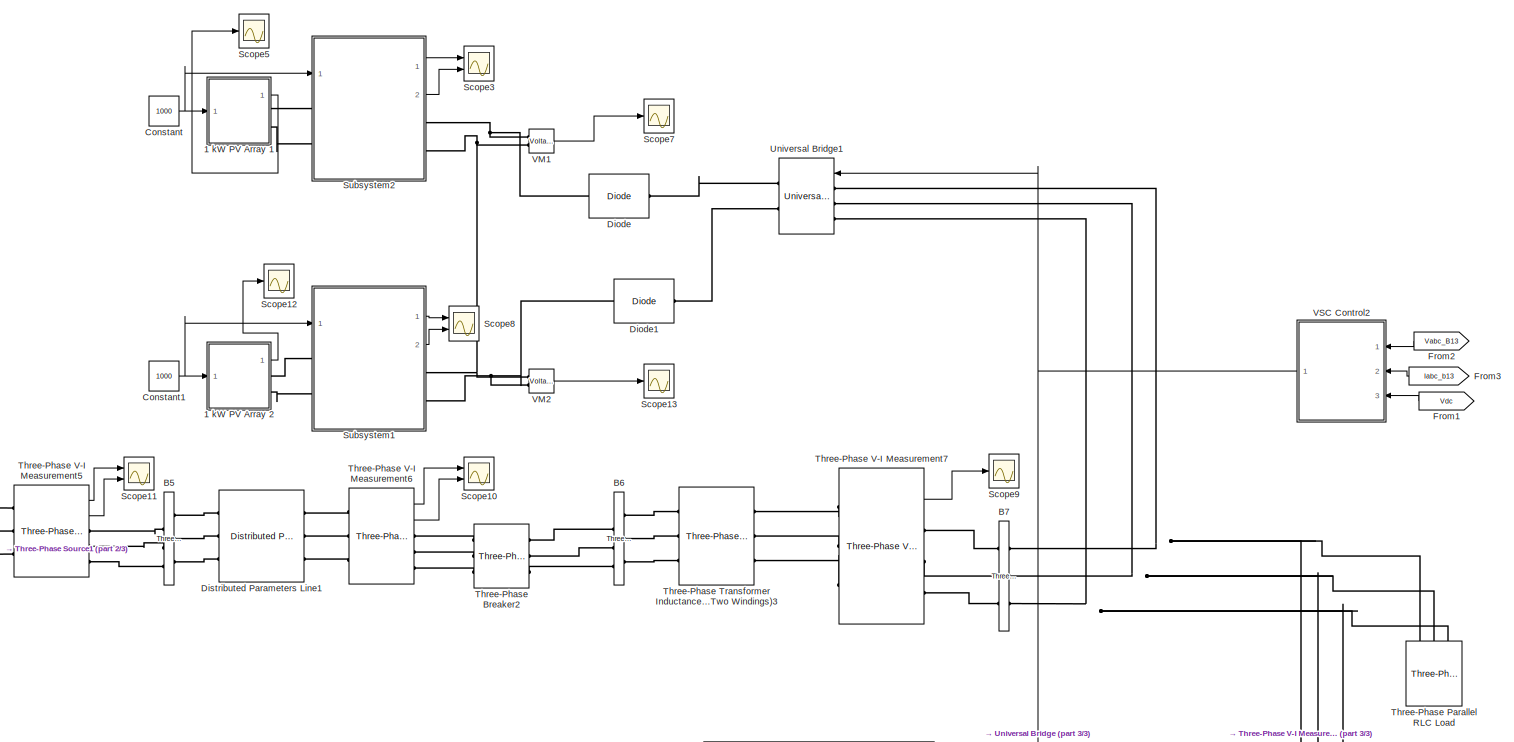
[diagram: root canvas - part 1/3, most of the canvas]
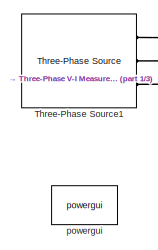
[diagram: root canvas - part 2/3, middle left region]
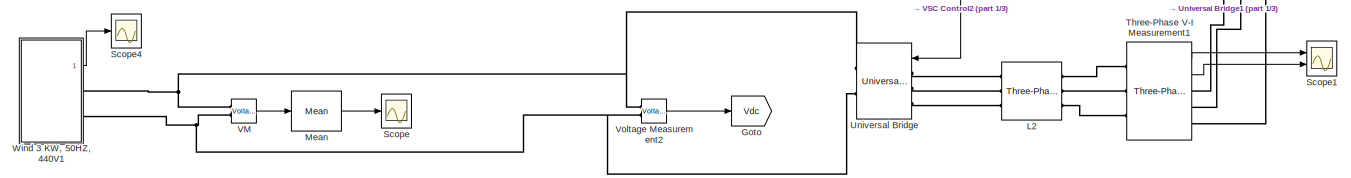
[diagram: root canvas - part 3/3, full width, bottom band]
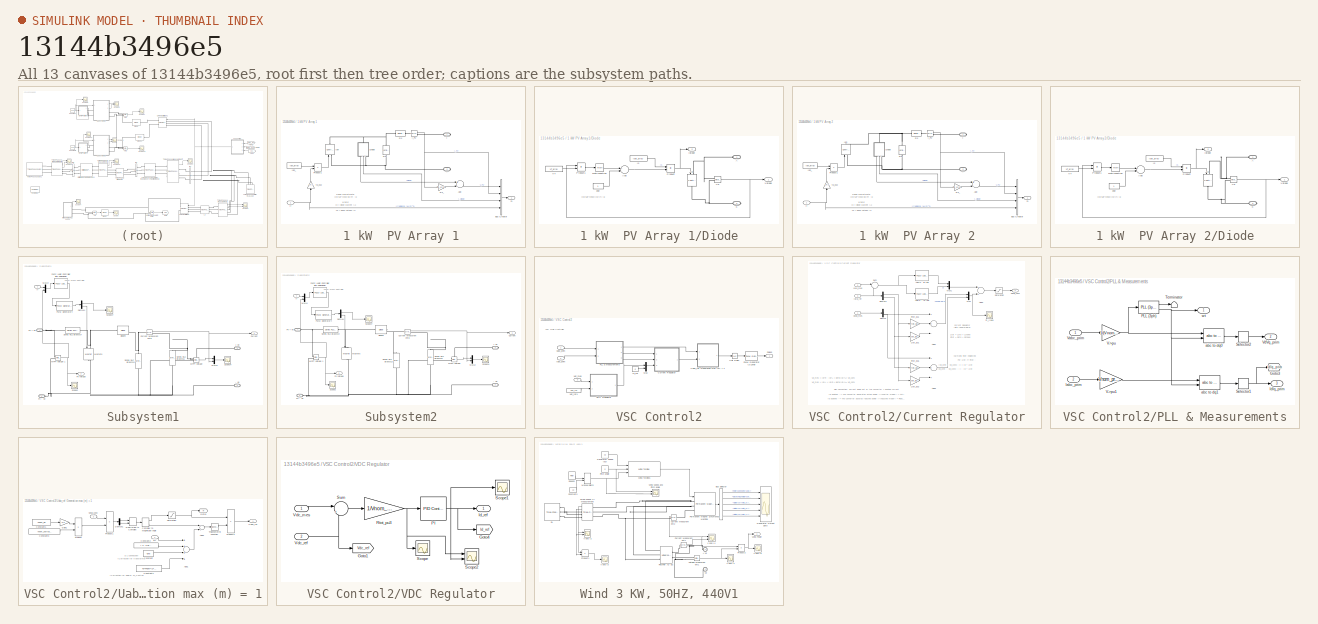
[diagram: thumbnail index - all 13 canvases of the model, root first then tree order]
MODEL slx_13144b3496e5
KIND model
CONFIG AbsTol = auto
CONFIG EnableMultiTasking = on
CONFIG FixedStep = auto
CONFIG MaxStep = auto
CONFIG MinStep = auto
CONFIG RelTol = 1e-3
CONFIG SampleTimeConstraint = Unconstrained
CONFIG Solver = ode45
CONFIG SolverName = ode45
CONFIG StartTime = 0.0
CONFIG StopTime = 1
BLOCK [SubSystem] 1 kW  PV Array 1
  Ports = [1, 1, 0, 0, 0, 0, 2]
  RequestExecContextInheritance = off
  Variant = off
BLOCK [PMIOPort] 1 kW  PV Array 1/+
  Port = 1
  Side = Right
BLOCK [PMIOPort] 1 kW  PV Array 1/-
  Port = 2
  Side = Right
BLOCK [Sum] 1 kW  PV Array 1/Add
  InputSameDT = off
  Inputs = +-
  OutDataTypeStr = Inherit: Inherit via internal rule
  Ports = [2, 1]
  SaturateOnIntegerOverflow = off
BLOCK [BusCreator] 1 kW  PV Array 1/Bus Creator
  DisplayOption = bar
  InheritFromInputs = on
  Inputs = 4
  Ports = [4, 1]
BLOCK [SubSystem] 1 kW  PV Array 1/Diode
  Ports = [0, 2, 0, 0, 0, 1, 1]
  RequestExecContextInheritance = off
  Variant = off
BLOCK [PMIOPort] 1 kW  PV Array 1/Diode/A
  Port = 1
  Side = Left
BLOCK [Sum] 1 kW  PV Array 1/Diode/Add
  InputSameDT = off
  Inputs = +-
  OutDataTypeStr = Inherit: Inherit via internal rule
  Ports = [2, 1]
  SaturateOnIntegerOverflow = off
BLOCK [Reference] 1 kW  PV Array 1/Diode/Id  REF=powerlib/Electrical
Sources/Controlled Current Source
  Ports = [1, 0, 0, 0, 0, 1, 1]
  SourceBlock = powerlib/Electrical\nSources/Controlled Current Source
  SourceProductBaseCode = PS
  SourceProductName = Simscape Power Systems
  SourceType = Controlled Current Source
BLOCK [Outport] 1 kW  PV Array 1/Diode/Idiode
  IconDisplay = Port number
  Port = 2
BLOCK [Constant] 1 kW  PV Array 1/Diode/Is
  Value = Isat_array
BLOCK [PMIOPort] 1 kW  PV Array 1/Diode/K
  Port = 2
  Side = Right
BLOCK [Math] 1 kW  PV Array 1/Diode/Math Function
  Ports = [1, 1]
BLOCK [Product] 1 kW  PV Array 1/Diode/Product
  InputSameDT = off
  OutDataTypeStr = Inherit: Inherit via internal rule
  Ports = [2, 1]
  SaturateOnIntegerOverflow = off
BLOCK [Product] 1 kW  PV Array 1/Diode/Product1
  InputSameDT = off
  Inputs = */
  OutDataTypeStr = Inherit: Inherit via internal rule
  Ports = [2, 1]
  SaturateOnIntegerOverflow = off
BLOCK [Constant] 1 kW  PV Array 1/Diode/VT
  Value = VT_array
BLOCK [Reference] 1 kW  PV Array 1/Diode/Vd  REF=powerlib/Measurements/Voltage Measurement
  Ports = [0, 1, 0, 0, 0, 2]
  SourceBlock = powerlib/Measurements/Voltage Measurement
  SourceProductBaseCode = PS
  SourceProductName = Simscape Power Systems
  SourceType = Voltage Measurement
BLOCK [Outport] 1 kW  PV Array 1/Diode/Vdiode
  IconDisplay = Port number
BLOCK [Constant] 1 kW  PV Array 1/Diode/one
BLOCK [Reference] 1 kW  PV Array 1/I_PV  REF=powerlib/Measurements/Current Measurement
  Ports = [0, 1, 0, 0, 0, 1, 1]
  SourceBlock = powerlib/Measurements/Current Measurement
  SourceProductBaseCode = PS
  SourceProductName = Simscape Power Systems
  SourceType = Current Measurement
BLOCK [Reference] 1 kW  PV Array 1/Iph  REF=powerlib/Electrical
Sources/Controlled Current Source
  Ports = [1, 0, 0, 0, 0, 1, 1]
  SourceBlock = powerlib/Electrical\nSources/Controlled Current Source
  SourceProductBaseCode = PS
  SourceProductName = Simscape Power Systems
  SourceType = Controlled Current Source
BLOCK [Constant] 1 kW  PV Array 1/Iph_
  Value = Iph_array
BLOCK [Inport] 1 kW  PV Array 1/Ir
  IconDisplay = Port number
BLOCK [Product] 1 kW  PV Array 1/Product1
  InputSameDT = off
  Inputs = **
  OutDataTypeStr = Inherit: Inherit via internal rule
  Ports = [2, 1]
  SaturateOnIntegerOverflow = off
BLOCK [Reference] 1 kW  PV Array 1/Rp  REF=powerlib/Elements/Series RLC Branch
  Ports = [0, 0, 0, 0, 0, 1, 1]
  SourceBlock = powerlib/Elements/Series RLC Branch
  SourceProductBaseCode = PS
  SourceProductName = Simscape Power Systems
  SourceType = Series RLC Branch
BLOCK [Reference] 1 kW  PV Array 1/Rs  REF=powerlib/Elements/Series RLC Branch
  Ports = [0, 0, 0, 0, 0, 1, 1]
  SourceBlock = powerlib/Elements/Series RLC Branch
  SourceProductBaseCode = PS
  SourceProductName = Simscape Power Systems
  SourceType = Series RLC Branch
BLOCK [Gain] 1 kW  PV Array 1/Rs_
  Gain = Rs_array
  OutDataTypeStr = Inherit: Inherit via internal rule
  ParamDataTypeStr = Inherit: Inherit via internal rule
  SaturateOnIntegerOverflow = off
BLOCK [Outport] 1 kW  PV Array 1/m
  IconDisplay = Port number
BLOCK [Gain] 1 kW  PV Array 1/t0_kW
  Gain = 1e-3
  OutDataTypeStr = Inherit: Inherit via internal rule
  ParamDataTypeStr = Inherit: Inherit via internal rule
  SaturateOnIntegerOverflow = off
BLOCK [SubSystem] 1 kW  PV Array 2
  Ports = [1, 1, 0, 0, 0, 0, 2]
  RequestExecContextInheritance = off
  Variant = off
BLOCK [PMIOPort] 1 kW  PV Array 2/+
  Port = 1
  Side = Right
BLOCK [PMIOPort] 1 kW  PV Array 2/-
  Port = 2
  Side = Right
BLOCK [Sum] 1 kW  PV Array 2/Add
  InputSameDT = off
  Inputs = +-
  OutDataTypeStr = Inherit: Inherit via internal rule
  Ports = [2, 1]
  SaturateOnIntegerOverflow = off
BLOCK [BusCreator] 1 kW  PV Array 2/Bus Creator
  DisplayOption = bar
  InheritFromInputs = on
  Inputs = 4
  Ports = [4, 1]
BLOCK [SubSystem] 1 kW  PV Array 2/Diode
  Ports = [0, 2, 0, 0, 0, 1, 1]
  RequestExecContextInheritance = off
  Variant = off
BLOCK [PMIOPort] 1 kW  PV Array 2/Diode/A
  Port = 1
  Side = Left
BLOCK [Sum] 1 kW  PV Array 2/Diode/Add
  InputSameDT = off
  Inputs = +-
  OutDataTypeStr = Inherit: Inherit via internal rule
  Ports = [2, 1]
  SaturateOnIntegerOverflow = off
BLOCK [Reference] 1 kW  PV Array 2/Diode/Id  REF=powerlib/Electrical
Sources/Controlled Current Source
  Ports = [1, 0, 0, 0, 0, 1, 1]
  SourceBlock = powerlib/Electrical\nSources/Controlled Current Source
  SourceProductBaseCode = PS
  SourceProductName = Simscape Power Systems
  SourceType = Controlled Current Source
BLOCK [Outport] 1 kW  PV Array 2/Diode/Idiode
  IconDisplay = Port number
  Port = 2
BLOCK [Constant] 1 kW  PV Array 2/Diode/Is
  Value = Isat_array
BLOCK [PMIOPort] 1 kW  PV Array 2/Diode/K
  Port = 2
  Side = Right
BLOCK [Math] 1 kW  PV Array 2/Diode/Math Function
  Ports = [1, 1]
BLOCK [Product] 1 kW  PV Array 2/Diode/Product
  InputSameDT = off
  OutDataTypeStr = Inherit: Inherit via internal rule
  Ports = [2, 1]
  SaturateOnIntegerOverflow = off
BLOCK [Product] 1 kW  PV Array 2/Diode/Product1
  InputSameDT = off
  Inputs = */
  OutDataTypeStr = Inherit: Inherit via internal rule
  Ports = [2, 1]
  SaturateOnIntegerOverflow = off
BLOCK [Constant] 1 kW  PV Array 2/Diode/VT
  Value = VT_array
BLOCK [Reference] 1 kW  PV Array 2/Diode/Vd  REF=powerlib/Measurements/Voltage Measurement
  Ports = [0, 1, 0, 0, 0, 2]
  SourceBlock = powerlib/Measurements/Voltage Measurement
  SourceProductBaseCode = PS
  SourceProductName = Simscape Power Systems
  SourceType = Voltage Measurement
BLOCK [Outport] 1 kW  PV Array 2/Diode/Vdiode
  IconDisplay = Port number
BLOCK [Constant] 1 kW  PV Array 2/Diode/one
BLOCK [Reference] 1 kW  PV Array 2/I_PV  REF=powerlib/Measurements/Current Measurement
  Ports = [0, 1, 0, 0, 0, 1, 1]
  SourceBlock = powerlib/Measurements/Current Measurement
  SourceProductBaseCode = PS
  SourceProductName = Simscape Power Systems
  SourceType = Current Measurement
BLOCK [Reference] 1 kW  PV Array 2/Iph  REF=powerlib/Electrical
Sources/Controlled Current Source
  Ports = [1, 0, 0, 0, 0, 1, 1]
  SourceBlock = powerlib/Electrical\nSources/Controlled Current Source
  SourceProductBaseCode = PS
  SourceProductName = Simscape Power Systems
  SourceType = Controlled Current Source
BLOCK [Constant] 1 kW  PV Array 2/Iph_
  Value = Iph_array
BLOCK [Inport] 1 kW  PV Array 2/Ir
  IconDisplay = Port number
BLOCK [Product] 1 kW  PV Array 2/Product1
  InputSameDT = off
  Inputs = **
  OutDataTypeStr = Inherit: Inherit via internal rule
  Ports = [2, 1]
  SaturateOnIntegerOverflow = off
BLOCK [Reference] 1 kW  PV Array 2/Rp  REF=powerlib/Elements/Series RLC Branch
  Ports = [0, 0, 0, 0, 0, 1, 1]
  SourceBlock = powerlib/Elements/Series RLC Branch
  SourceProductBaseCode = PS
  SourceProductName = Simscape Power Systems
  SourceType = Series RLC Branch
BLOCK [Reference] 1 kW  PV Array 2/Rs  REF=powerlib/Elements/Series RLC Branch
  Ports = [0, 0, 0, 0, 0, 1, 1]
  SourceBlock = powerlib/Elements/Series RLC Branch
  SourceProductBaseCode = PS
  SourceProductName = Simscape Power Systems
  SourceType = Series RLC Branch
BLOCK [Gain] 1 kW  PV Array 2/Rs_
  Gain = Rs_array
  OutDataTypeStr = Inherit: Inherit via internal rule
  ParamDataTypeStr = Inherit: Inherit via internal rule
  SaturateOnIntegerOverflow = off
BLOCK [Outport] 1 kW  PV Array 2/m
  IconDisplay = Port number
BLOCK [Gain] 1 kW  PV Array 2/t0_kW
  Gain = 1e-3
  OutDataTypeStr = Inherit: Inherit via internal rule
  ParamDataTypeStr = Inherit: Inherit via internal rule
  SaturateOnIntegerOverflow = off
BLOCK [Reference] B5  REF=powerlib/Measurements/Three-Phase
V-I Measurement
  Ports = [0, 1, 0, 0, 0, 3, 3]
  SourceBlock = powerlib/Measurements/Three-Phase\nV-I Measurement
  SourceProductBaseCode = PS
  SourceProductName = Simscape Power Systems
  SourceType = Three-Phase VI Measurement
BLOCK [Reference] B6  REF=powerlib/Measurements/Three-Phase
V-I Measurement
  Ports = [0, 1, 0, 0, 0, 3, 3]
  SourceBlock = powerlib/Measurements/Three-Phase\nV-I Measurement
  SourceProductBaseCode = PS
  SourceProductName = Simscape Power Systems
  SourceType = Three-Phase VI Measurement
BLOCK [Reference] B7  REF=powerlib/Measurements/Three-Phase
V-I Measurement
  Ports = [0, 0, 0, 0, 0, 3, 3]
  SourceBlock = powerlib/Measurements/Three-Phase\nV-I Measurement
  SourceProductBaseCode = PS
  SourceProductName = Simscape Power Systems
  SourceType = Three-Phase VI Measurement
BLOCK [Constant] Constant
  Value = 1000
BLOCK [Constant] Constant1
  Value = 1000
BLOCK [Reference] Diode  REF=powerlib/Power
Electronics/Diode
  Ports = [0, 0, 0, 0, 0, 1, 1]
  SourceBlock = powerlib/Power\nElectronics/Diode
  SourceProductBaseCode = PS
  SourceProductName = Simscape Power Systems
  SourceType = Diode
BLOCK [Reference] Diode1  REF=powerlib/Power
Electronics/Diode
  Ports = [0, 0, 0, 0, 0, 1, 1]
  SourceBlock = powerlib/Power\nElectronics/Diode
  SourceProductBaseCode = PS
  SourceProductName = Simscape Power Systems
  SourceType = Diode
BLOCK [Reference] Distributed Parameters Line1  REF=powerlib/Elements/Distributed Parameters Line
  Ports = [0, 0, 0, 0, 0, 3, 3]
  SourceBlock = powerlib/Elements/Distributed Parameters Line
  SourceProductBaseCode = PS
  SourceProductName = Simscape Power Systems
  SourceType = Distributed Parameters Line
BLOCK [From] From1
  GotoTag = Vdc
BLOCK [From] From2
  CloseFcn = tagdialog Close
  GotoTag = Vabc_B13
  TagVisibility = global
BLOCK [From] From3
  CloseFcn = tagdialog Close
  GotoTag = Iabc_b13
  TagVisibility = global
BLOCK [Goto] Goto
  GotoTag = Vdc
BLOCK [Reference] L2  REF=powerlib/Elements/Three-Phase
Series RLC Branch
  AttributesFormatString = \n
  Ports = [0, 0, 0, 0, 0, 3, 3]
  SourceBlock = powerlib/Elements/Three-Phase\nSeries RLC Branch
  SourceProductBaseCode = PS
  SourceProductName = Simscape Power Systems
  SourceType = Three-Phase Series RLC Branch
BLOCK [Reference] Mean  REF=powerlib_meascontrol/Measurements/Mean
  Ports = [1, 1]
  SourceBlock = powerlib_meascontrol/Measurements/Mean
  SourceProductBaseCode = PS
  SourceProductName = Simscape Power Systems
  SourceType = Mean
BLOCK [Scope] Scope
  NumInputPorts = 1
  Ports = [1]
  ScopeSpecificationString = Simulink.scopes.TimeScopeBlockCfg('CurrentConfiguration', extmgr.ConfigurationSet(extmgr.Configuration('Core','General UI',true),extmgr.Configuration('Core','Source UI',true),extmgr.Configuration('Sources','WiredSimulink',true,'DataLoggingVariableName','ScopeData10','DataLoggingLimitDataPoints',true,'DataLoggingSaveFormat','Array','DataLoggingDecimation','1','DataLoggingDecimateData',true),extmgr....<+1583ch>
BLOCK [Scope] Scope1
  NumInputPorts = 2
  Ports = [2]
  ScopeSpecificationString = Simulink.scopes.TimeScopeBlockCfg('CurrentConfiguration', extmgr.ConfigurationSet(extmgr.Configuration('Core','General UI',true,'FigureColor',[1 1 1]),extmgr.Configuration('Core','Source UI',true),extmgr.Configuration('Sources','WiredSimulink',true,'DataLogging',true,'DataLoggingVariableName','pvg','DataLoggingSaveFormat','StructureWithTime','DataLoggingDecimation','1','DataLoggingDecimateData',tr...<+3021ch>
BLOCK [Scope] Scope10
  NumInputPorts = 2
  Ports = [2]
  ScopeSpecificationString = Simulink.scopes.TimeScopeBlockCfg('CurrentConfiguration', extmgr.ConfigurationSet(extmgr.Configuration('Core','General UI',true),extmgr.Configuration('Core','Source UI',true),extmgr.Configuration('Sources','WiredSimulink',true,'DataLoggingVariableName','ScopeData5','DataLoggingSaveFormat','StructureWithTime','DataLoggingLimitDataPoints',true,'DataLoggingDecimation','1','DataLoggingDecimateData',tr...<+2631ch>
BLOCK [Scope] Scope11
  NumInputPorts = 2
  Ports = [2]
  ScopeSpecificationString = Simulink.scopes.TimeScopeBlockCfg('CurrentConfiguration', extmgr.ConfigurationSet(extmgr.Configuration('Core','General UI',true),extmgr.Configuration('Core','Source UI',true),extmgr.Configuration('Sources','WiredSimulink',true,'DataLoggingVariableName','ScopeData9','DataLoggingSaveFormat','StructureWithTime','DataLoggingDecimation','1','DataLoggingDecimateData',true),extmgr.Configuration('Visuals'...<+2611ch>
BLOCK [Scope] Scope12
  NumInputPorts = 1
  Ports = [1]
  ScopeSpecificationString = Simulink.scopes.TimeScopeBlockCfg('CurrentConfiguration', extmgr.ConfigurationSet(extmgr.Configuration('Core','General UI',true),extmgr.Configuration('Core','Source UI',true),extmgr.Configuration('Sources','WiredSimulink',true,'DataLoggingVariableName','ScopeData2','DataLoggingSaveFormat','Array','DataLoggingDecimation','1','DataLoggingDecimateData',true),extmgr.Configuration('Visuals','Time Domai...<+1768ch>
BLOCK [Scope] Scope13
  NumInputPorts = 1
  Ports = [1]
  ScopeSpecificationString = Simulink.scopes.TimeScopeBlockCfg('CurrentConfiguration', extmgr.ConfigurationSet(extmgr.Configuration('Core','General UI',true),extmgr.Configuration('Core','Source UI',true),extmgr.Configuration('Sources','WiredSimulink',true,'DataLoggingVariableName','ScopeData3','DataLoggingLimitDataPoints',true,'DataLoggingSaveFormat','Array','DataLoggingDecimation','1','DataLoggingDecimateData',true),extmgr.C...<+1621ch>
BLOCK [Scope] Scope3
  NumInputPorts = 2
  Ports = [2]
  ScopeSpecificationString = Simulink.scopes.TimeScopeBlockCfg('CurrentConfiguration', extmgr.ConfigurationSet(extmgr.Configuration('Core','General UI',true),extmgr.Configuration('Core','Source UI',true),extmgr.Configuration('Sources','WiredSimulink',true,'DataLoggingVariableName','ScopeData12','DataLoggingLimitDataPoints',true,'DataLoggingSaveFormat','Array','DataLoggingDecimation','1','DataLoggingDecimateData',true),extmgr....<+1522ch>
BLOCK [Scope] Scope4
  NumInputPorts = 1
  Ports = [1]
  ScopeSpecificationString = Simulink.scopes.TimeScopeBlockCfg('CurrentConfiguration', extmgr.ConfigurationSet(extmgr.Configuration('Core','General UI',true),extmgr.Configuration('Core','Source UI',true),extmgr.Configuration('Sources','WiredSimulink',true,'DataLoggingVariableName','ScopeData13','DataLoggingSaveFormat','Array','DataLoggingDecimation','1','DataLoggingDecimateData',true),extmgr.Configuration('Visuals','Time Doma...<+1738ch>
BLOCK [Scope] Scope5
  NumInputPorts = 1
  Ports = [1]
  ScopeSpecificationString = C++SS(StrPVP('Location','[5, 49, 1359, 727]'),StrPVP('Open','off'),StrPVP('ZoomMode','xonly'),MxPVP('AxesTitles',53,'struct(''axes1'',''%<SignalLabel>'')'),MxPVP('ScopeGraphics',56,'struct(''FigureColor'',''[0.5 0.5 0.5]'',''AxesColor'',''[0 0 0]'',''AxesTickColor'',''[1 1 1]'',''LineColors'',''[1 1 0;1 0 1;0 1 1;1 0 0;0 1 0;0 0 1]'',''LineStyles'',''-|-|-|-|-|-'',''LineWidths'',''[0.5 0.5 0.5 0.5...<+330ch>
BLOCK [Scope] Scope7
  NumInputPorts = 1
  Ports = [1]
  ScopeSpecificationString = Simulink.scopes.TimeScopeBlockCfg('CurrentConfiguration', extmgr.ConfigurationSet(extmgr.Configuration('Core','General UI',true),extmgr.Configuration('Core','Source UI',true),extmgr.Configuration('Sources','WiredSimulink',true,'DataLoggingVariableName','ScopeData1','DataLoggingLimitDataPoints',true,'DataLoggingSaveFormat','Array','DataLoggingDecimation','1','DataLoggingDecimateData',true),extmgr.C...<+1590ch>
BLOCK [Scope] Scope8
  NumInputPorts = 2
  Ports = [2]
  ScopeSpecificationString = Simulink.scopes.TimeScopeBlockCfg('CurrentConfiguration', extmgr.ConfigurationSet(extmgr.Configuration('Core','General UI',true),extmgr.Configuration('Core','Source UI',true),extmgr.Configuration('Sources','WiredSimulink',true,'DataLoggingVariableName','ScopeData4','DataLoggingLimitDataPoints',true,'DataLoggingSaveFormat','Array','DataLoggingDecimation','1','DataLoggingDecimateData',true),extmgr.C...<+1546ch>
BLOCK [Scope] Scope9
  NumInputPorts = 1
  Ports = [1]
  ScopeSpecificationString = Simulink.scopes.TimeScopeBlockCfg('CurrentConfiguration', extmgr.ConfigurationSet(extmgr.Configuration('Core','General UI',true),extmgr.Configuration('Core','Source UI',true),extmgr.Configuration('Sources','WiredSimulink',true,'DataLogging',true,'DataLoggingVariableName','pvg1','DataLoggingSaveFormat','StructureWithTime','DataLoggingDecimation','1','DataLoggingDecimateData',true),extmgr.Configurat...<+1932ch>
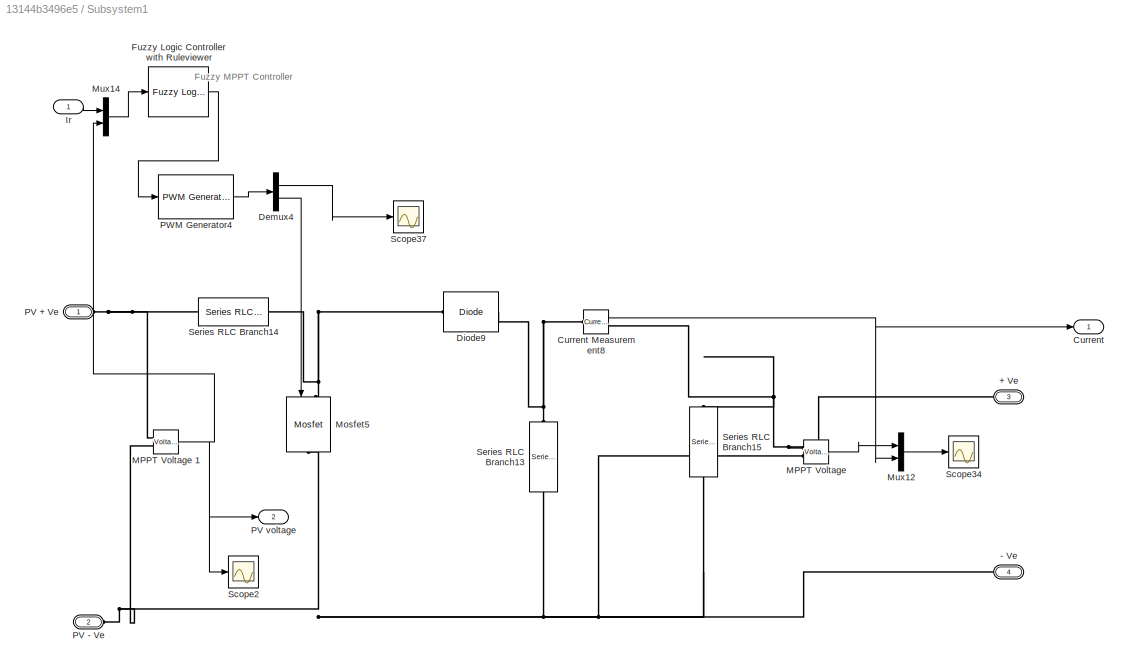
BLOCK [SubSystem] Subsystem1
  Ports = [1, 2, 0, 0, 0, 2, 2]
  RequestExecContextInheritance = off
  Variant = off
BLOCK [PMIOPort] Subsystem1/+ Ve
  Port = 3
  Side = Right
BLOCK [PMIOPort] Subsystem1/- Ve
  Port = 4
  Side = Right
BLOCK [Outport] Subsystem1/Current 
  IconDisplay = Port number
BLOCK [Reference] Subsystem1/Current Measurement8  REF=powerlib/Measurements/Current Measurement
  Ports = [0, 1, 0, 0, 0, 1, 1]
  SourceBlock = powerlib/Measurements/Current Measurement
  SourceProductBaseCode = PS
  SourceProductName = Simscape Power Systems
  SourceType = Current Measurement
BLOCK [Demux] Subsystem1/Demux4
  DisplayOption = bar
  Outputs = 2
  Ports = [1, 2]
BLOCK [Reference] Subsystem1/Diode9  REF=powerlib/Power
Electronics/Diode
  Ports = [0, 0, 0, 0, 0, 1, 1]
  SourceBlock = powerlib/Power\nElectronics/Diode
  SourceProductBaseCode = PS
  SourceProductName = Simscape Power Systems
  SourceType = Diode
BLOCK [Reference] Subsystem1/Fuzzy Logic Controller with Ruleviewer  REF=fuzblock/Fuzzy Logic   (lib defined in mdl_858b3b3e7478)
Controller 
with Ruleviewer
  Ports = [1, 1]
  SourceBlock = fuzblock/Fuzzy Logic \nController \nwith Ruleviewer
  SourceProductBaseCode = FL
  SourceProductName = Fuzzy Logic Toolbox
  SourceType = FIS
BLOCK [Inport] Subsystem1/Ir
  IconDisplay = Port number
BLOCK [Reference] Subsystem1/MPPT Voltage   REF=powerlib/Measurements/Voltage Measurement
  Ports = [0, 1, 0, 0, 0, 2]
  SourceBlock = powerlib/Measurements/Voltage Measurement
  SourceProductBaseCode = PS
  SourceProductName = Simscape Power Systems
  SourceType = Voltage Measurement
BLOCK [Reference] Subsystem1/MPPT Voltage 1  REF=powerlib/Measurements/Voltage Measurement
  Ports = [0, 1, 0, 0, 0, 2]
  SourceBlock = powerlib/Measurements/Voltage Measurement
  SourceProductBaseCode = PS
  SourceProductName = Simscape Power Systems
  SourceType = Voltage Measurement
BLOCK [Reference] Subsystem1/Mosfet5  REF=powerlib/Power
Electronics/Mosfet
  Ports = [1, 0, 0, 0, 0, 1, 1]
  SourceBlock = powerlib/Power\nElectronics/Mosfet
  SourceProductBaseCode = PS
  SourceProductName = Simscape Power Systems
  SourceType = Mosfet
BLOCK [Mux] Subsystem1/Mux12
  DisplayOption = bar
  Inputs = 2
  Ports = [2, 1]
BLOCK [Mux] Subsystem1/Mux14
  DisplayOption = bar
  Inputs = 2
  Ports = [2, 1]
BLOCK [PMIOPort] Subsystem1/PV + Ve
  Port = 1
  Side = Left
BLOCK [PMIOPort] Subsystem1/PV - Ve
  Port = 2
  Side = Left
BLOCK [Outport] Subsystem1/PV voltage 
  IconDisplay = Port number
  Port = 2
BLOCK [Reference] Subsystem1/PWM Generator4  REF=powerlib_extras/Control 
Blocks/PWM Generator
  Ports = [1, 1]
  SourceBlock = powerlib_extras/Control \nBlocks/PWM Generator
  SourceType = PWM Generator
BLOCK [Scope] Subsystem1/Scope2
  NumInputPorts = 1
  Ports = [1]
  ScopeSpecificationString = C++SS(StrPVP('Location','[5, 48, 1367, 727]'),StrPVP('Open','off'),MxPVP('AxesTitles',53,'struct(''axes1'',''%<SignalLabel>'')'),MxPVP('ScopeGraphics',56,'struct(''FigureColor'',''[1 1 1]'',''AxesColor'',''[1 1 1]'',''AxesTickColor'',''[0 0 0]'',''LineColors'',''[0 0 1;1 0 0;0 1 1;1 0 0;0 1 0;0 0 1]'',''LineStyles'',''-|-|-|-|-|-'',''LineWidths'',''[2 0.5 0.5 0.5 0.5 0.5]'',''MarkerStyles'',''none...<+342ch>
BLOCK [Scope] Subsystem1/Scope34
  NumInputPorts = 1
  Ports = [1]
  ScopeSpecificationString = C++SS(StrPVP('Location','[5, 49, 1359, 727]'),StrPVP('Open','off'),StrPVP('ZoomMode','xonly'),MxPVP('AxesTitles',53,'struct(''axes1'',''ANFIS BASED MPPT OF PV VOLTAGE AND CURRENT'')'),MxPVP('ScopeGraphics',56,'struct(''FigureColor'',''[1 1 1]'',''AxesColor'',''[1 1 1]'',''AxesTickColor'',''[0 0 0]'',''LineColors'',''[0 0 1;1 0 0;0 1 1;1 0 0;0 1 0;0 0 1]'',''LineStyles'',''-|-|-|-|-|-'',''LineWidth...<+391ch>
BLOCK [Scope] Subsystem1/Scope37
  NumInputPorts = 1
  Ports = [1]
  ScopeSpecificationString = C++SS(StrPVP('Location','[5, 48, 1371, 727]'),StrPVP('Open','off'),MxPVP('AxesTitles',53,'struct(''axes1'',''%<SignalLabel>'')'),MxPVP('ScopeGraphics',56,'struct(''FigureColor'',''[1 1 1]'',''AxesColor'',''[1 1 1]'',''AxesTickColor'',''[0 0 0]'',''LineColors'',''[0 0 1;1 0 0;0 1 1;1 0 0;0 1 0;0 0 1]'',''LineStyles'',''-|-|-|-|-|-'',''LineWidths'',''[2 0.5 0.5 0.5 0.5 0.5]'',''MarkerStyles'',''none...<+342ch>
BLOCK [Reference] Subsystem1/Series RLC Branch13  REF=powerlib/Elements/Series RLC Branch
  Ports = [0, 0, 0, 0, 0, 1, 1]
  SourceBlock = powerlib/Elements/Series RLC Branch
  SourceProductBaseCode = PS
  SourceProductName = Simscape Power Systems
  SourceType = Series RLC Branch
BLOCK [Reference] Subsystem1/Series RLC Branch14  REF=powerlib/Elements/Series RLC Branch
  Ports = [0, 0, 0, 0, 0, 1, 1]
  SourceBlock = powerlib/Elements/Series RLC Branch
  SourceProductBaseCode = PS
  SourceProductName = Simscape Power Systems
  SourceType = Series RLC Branch
BLOCK [Reference] Subsystem1/Series RLC Branch15  REF=powerlib/Elements/Series RLC Branch
  Ports = [0, 0, 0, 0, 0, 1, 1]
  SourceBlock = powerlib/Elements/Series RLC Branch
  SourceProductBaseCode = PS
  SourceProductName = Simscape Power Systems
  SourceType = Series RLC Branch
BLOCK [SubSystem] Subsystem2
  Ports = [1, 2, 0, 0, 0, 2, 2]
  RequestExecContextInheritance = off
  Variant = off
BLOCK [PMIOPort] Subsystem2/+ Ve
  Port = 3
  Side = Right
BLOCK [PMIOPort] Subsystem2/- Ve
  Port = 4
  Side = Right
BLOCK [Outport] Subsystem2/Current 
  IconDisplay = Port number
BLOCK [Reference] Subsystem2/Current Measurement8  REF=powerlib/Measurements/Current Measurement
  Ports = [0, 1, 0, 0, 0, 1, 1]
  SourceBlock = powerlib/Measurements/Current Measurement
  SourceProductBaseCode = PS
  SourceProductName = Simscape Power Systems
  SourceType = Current Measurement
BLOCK [Demux] Subsystem2/Demux4
  DisplayOption = bar
  Outputs = 2
  Ports = [1, 2]
BLOCK [Reference] Subsystem2/Diode9  REF=powerlib/Power
Electronics/Diode
  Ports = [0, 0, 0, 0, 0, 1, 1]
  SourceBlock = powerlib/Power\nElectronics/Diode
  SourceProductBaseCode = PS
  SourceProductName = Simscape Power Systems
  SourceType = Diode
BLOCK [Reference] Subsystem2/Fuzzy Logic Controller with Ruleviewer  REF=fuzblock/Fuzzy Logic   (lib defined in mdl_858b3b3e7478)
Controller 
with Ruleviewer
  Ports = [1, 1]
  SourceBlock = fuzblock/Fuzzy Logic \nController \nwith Ruleviewer
  SourceProductBaseCode = FL
  SourceProductName = Fuzzy Logic Toolbox
  SourceType = FIS
BLOCK [Inport] Subsystem2/Ir
  IconDisplay = Port number
BLOCK [Reference] Subsystem2/MPPT Voltage   REF=powerlib/Measurements/Voltage Measurement
  Ports = [0, 1, 0, 0, 0, 2]
  SourceBlock = powerlib/Measurements/Voltage Measurement
  SourceProductBaseCode = PS
  SourceProductName = Simscape Power Systems
  SourceType = Voltage Measurement
BLOCK [Reference] Subsystem2/MPPT Voltage 1  REF=powerlib/Measurements/Voltage Measurement
  Ports = [0, 1, 0, 0, 0, 2]
  SourceBlock = powerlib/Measurements/Voltage Measurement
  SourceProductBaseCode = PS
  SourceProductName = Simscape Power Systems
  SourceType = Voltage Measurement
BLOCK [Reference] Subsystem2/Mosfet5  REF=powerlib/Power
Electronics/Mosfet
  Ports = [1, 0, 0, 0, 0, 1, 1]
  SourceBlock = powerlib/Power\nElectronics/Mosfet
  SourceProductBaseCode = PS
  SourceProductName = Simscape Power Systems
  SourceType = Mosfet
BLOCK [Mux] Subsystem2/Mux12
  DisplayOption = bar
  Inputs = 2
  Ports = [2, 1]
BLOCK [Mux] Subsystem2/Mux14
  DisplayOption = bar
  Inputs = 2
  Ports = [2, 1]
BLOCK [PMIOPort] Subsystem2/PV + Ve
  Port = 1
  Side = Left
BLOCK [PMIOPort] Subsystem2/PV - Ve
  Port = 2
  Side = Left
BLOCK [Outport] Subsystem2/PV voltage 
  IconDisplay = Port number
  Port = 2
BLOCK [Reference] Subsystem2/PWM Generator4  REF=powerlib_extras/Control 
Blocks/PWM Generator
  Ports = [1, 1]
  SourceBlock = powerlib_extras/Control \nBlocks/PWM Generator
  SourceType = PWM Generator
BLOCK [Scope] Subsystem2/Scope2
  NumInputPorts = 1
  Ports = [1]
  ScopeSpecificationString = C++SS(StrPVP('Location','[5, 48, 1367, 727]'),StrPVP('Open','off'),MxPVP('AxesTitles',53,'struct(''axes1'',''%<SignalLabel>'')'),MxPVP('ScopeGraphics',56,'struct(''FigureColor'',''[1 1 1]'',''AxesColor'',''[1 1 1]'',''AxesTickColor'',''[0 0 0]'',''LineColors'',''[0 0 1;1 0 0;0 1 1;1 0 0;0 1 0;0 0 1]'',''LineStyles'',''-|-|-|-|-|-'',''LineWidths'',''[2 0.5 0.5 0.5 0.5 0.5]'',''MarkerStyles'',''none...<+342ch>
BLOCK [Scope] Subsystem2/Scope34
  NumInputPorts = 1
  Ports = [1]
  ScopeSpecificationString = C++SS(StrPVP('Location','[5, 49, 1359, 727]'),StrPVP('Open','off'),StrPVP('ZoomMode','xonly'),MxPVP('AxesTitles',53,'struct(''axes1'',''ANFIS BASED MPPT OF PV VOLTAGE AND CURRENT'')'),MxPVP('ScopeGraphics',56,'struct(''FigureColor'',''[1 1 1]'',''AxesColor'',''[1 1 1]'',''AxesTickColor'',''[0 0 0]'',''LineColors'',''[0 0 1;1 0 0;0 1 1;1 0 0;0 1 0;0 0 1]'',''LineStyles'',''-|-|-|-|-|-'',''LineWidth...<+391ch>
BLOCK [Scope] Subsystem2/Scope37
  NumInputPorts = 1
  Ports = [1]
  ScopeSpecificationString = C++SS(StrPVP('Location','[5, 48, 1371, 727]'),StrPVP('Open','off'),MxPVP('AxesTitles',53,'struct(''axes1'',''%<SignalLabel>'')'),MxPVP('ScopeGraphics',56,'struct(''FigureColor'',''[1 1 1]'',''AxesColor'',''[1 1 1]'',''AxesTickColor'',''[0 0 0]'',''LineColors'',''[0 0 1;1 0 0;0 1 1;1 0 0;0 1 0;0 0 1]'',''LineStyles'',''-|-|-|-|-|-'',''LineWidths'',''[2 0.5 0.5 0.5 0.5 0.5]'',''MarkerStyles'',''none...<+342ch>
BLOCK [Reference] Subsystem2/Series RLC Branch13  REF=powerlib/Elements/Series RLC Branch
  Ports = [0, 0, 0, 0, 0, 1, 1]
  SourceBlock = powerlib/Elements/Series RLC Branch
  SourceProductBaseCode = PS
  SourceProductName = Simscape Power Systems
  SourceType = Series RLC Branch
BLOCK [Reference] Subsystem2/Series RLC Branch14  REF=powerlib/Elements/Series RLC Branch
  Ports = [0, 0, 0, 0, 0, 1, 1]
  SourceBlock = powerlib/Elements/Series RLC Branch
  SourceProductBaseCode = PS
  SourceProductName = Simscape Power Systems
  SourceType = Series RLC Branch
BLOCK [Reference] Subsystem2/Series RLC Branch15  REF=powerlib/Elements/Series RLC Branch
  Ports = [0, 0, 0, 0, 0, 1, 1]
  SourceBlock = powerlib/Elements/Series RLC Branch
  SourceProductBaseCode = PS
  SourceProductName = Simscape Power Systems
  SourceType = Series RLC Branch
BLOCK [Reference] Three-Phase Breaker2  REF=powerlib/Elements/Three-Phase Breaker
  Ports = [0, 0, 0, 0, 0, 3, 3]
  SourceBlock = powerlib/Elements/Three-Phase Breaker
  SourceProductBaseCode = PS
  SourceProductName = Simscape Power Systems
  SourceType = Three-Phase Breaker
BLOCK [Reference] Three-Phase Parallel RLC Load  REF=powerlib/Elements/Three-Phase
Parallel RLC Load
  AttributesFormatString = \n
  Ports = [0, 0, 0, 0, 0, 3]
  SourceBlock = powerlib/Elements/Three-Phase\nParallel RLC Load
  SourceProductBaseCode = PS
  SourceProductName = Simscape Power Systems
  SourceType = Three-Phase Parallel RLC Load
BLOCK [Reference] Three-Phase Source1  REF=powerlib/Electrical
Sources/Three-Phase Source
  Ports = [0, 0, 0, 0, 0, 0, 3]
  SourceBlock = powerlib/Electrical\nSources/Three-Phase Source
  SourceProductBaseCode = PS
  SourceProductName = Simscape Power Systems
  SourceType = Three-Phase Source
BLOCK [Reference] Three-Phase Transformer Inductance Matrix Type (Two Windings)3  REF=powerlib/Elements/Three-Phase Transformer
Inductance Matrix Type
(Two Windings)
  Ports = [0, 0, 0, 0, 0, 3, 3]
  SourceBlock = powerlib/Elements/Three-Phase Transformer\nInductance Matrix Type\n(Two Windings)
  SourceProductBaseCode = PS
  SourceProductName = Simscape Power Systems
  SourceType = Three-Phase Transformer Inductance MatrixType (Two Windings)
BLOCK [Reference] Three-Phase V-I Measurement1  REF=powerlib/Measurements/Three-Phase
V-I Measurement
  Ports = [0, 2, 0, 0, 0, 3, 3]
  SourceBlock = powerlib/Measurements/Three-Phase\nV-I Measurement
  SourceProductBaseCode = PS
  SourceProductName = Simscape Power Systems
  SourceType = Three-Phase VI Measurement
BLOCK [Reference] Three-Phase V-I Measurement5  REF=powerlib/Measurements/Three-Phase
V-I Measurement
  Ports = [0, 2, 0, 0, 0, 3, 3]
  SourceBlock = powerlib/Measurements/Three-Phase\nV-I Measurement
  SourceProductBaseCode = PS
  SourceProductName = Simscape Power Systems
  SourceType = Three-Phase VI Measurement
BLOCK [Reference] Three-Phase V-I Measurement6  REF=powerlib/Measurements/Three-Phase
V-I Measurement
  Ports = [0, 2, 0, 0, 0, 3, 3]
  SourceBlock = powerlib/Measurements/Three-Phase\nV-I Measurement
  SourceProductBaseCode = PS
  SourceProductName = Simscape Power Systems
  SourceType = Three-Phase VI Measurement
BLOCK [Reference] Three-Phase V-I Measurement7  REF=powerlib/Measurements/Three-Phase
V-I Measurement
  Ports = [0, 1, 0, 0, 0, 3, 3]
  SourceBlock = powerlib/Measurements/Three-Phase\nV-I Measurement
  SourceProductBaseCode = PS
  SourceProductName = Simscape Power Systems
  SourceType = Three-Phase VI Measurement
BLOCK [Reference] Universal Bridge  REF=powerlib/Power
Electronics/Universal Bridge
  Ports = [1, 0, 0, 0, 0, 3, 2]
  SourceBlock = powerlib/Power\nElectronics/Universal Bridge
  SourceProductBaseCode = PS
  SourceProductName = Simscape Power Systems
  SourceType = Universal Bridge
BLOCK [Reference] Universal Bridge1  REF=powerlib/Power
Electronics/Universal Bridge
  Ports = [1, 0, 0, 0, 0, 3, 2]
  SourceBlock = powerlib/Power\nElectronics/Universal Bridge
  SourceProductBaseCode = PS
  SourceProductName = Simscape Power Systems
  SourceType = Universal Bridge
BLOCK [Reference] VM  REF=powerlib/Measurements/Voltage Measurement
  Ports = [0, 1, 0, 0, 0, 2]
  SourceBlock = powerlib/Measurements/Voltage Measurement
  SourceProductBaseCode = PS
  SourceProductName = Simscape Power Systems
  SourceType = Voltage Measurement
  UserDataPersistent = on
BLOCK [Reference] VM1  REF=powerlib/Measurements/Voltage Measurement
  Ports = [0, 1, 0, 0, 0, 2]
  SourceBlock = powerlib/Measurements/Voltage Measurement
  SourceProductBaseCode = PS
  SourceProductName = Simscape Power Systems
  SourceType = Voltage Measurement
  UserDataPersistent = on
BLOCK [Reference] VM2  REF=powerlib/Measurements/Voltage Measurement
  Ports = [0, 1, 0, 0, 0, 2]
  SourceBlock = powerlib/Measurements/Voltage Measurement
  SourceProductBaseCode = PS
  SourceProductName = Simscape Power Systems
  SourceType = Voltage Measurement
  UserDataPersistent = on
BLOCK [SubSystem] VSC Control2
  Ports = [3, 1]
  RequestExecContextInheritance = off
  Variant = off
BLOCK [SubSystem] VSC Control2/Current Regulator
  Ports = [3, 1]
  RequestExecContextInheritance = off
  Variant = off
BLOCK [Reference] VSC Control2/Current Regulator/ANFIS - Iq reg  REF=fuzblock/Fuzzy Logic   (lib defined in mdl_858b3b3e7478)
Controller 
with Ruleviewer
  Ports = [1, 1]
  SourceBlock = fuzblock/Fuzzy Logic \nController \nwith Ruleviewer
  SourceProductBaseCode = FL
  SourceProductName = Fuzzy Logic Toolbox
  SourceType = FIS
BLOCK [Reference] VSC Control2/Current Regulator/ANFIS - id reg  REF=fuzblock/Fuzzy Logic   (lib defined in mdl_858b3b3e7478)
Controller 
with Ruleviewer
  Ports = [1, 1]
  SourceBlock = fuzblock/Fuzzy Logic \nController \nwith Ruleviewer
  SourceProductBaseCode = FL
  SourceProductName = Fuzzy Logic Toolbox
  SourceType = FIS
BLOCK [Sum] VSC Control2/Current Regulator/Add1
  InputSameDT = off
  Inputs = ++-
  OutDataTypeStr = Inherit: Inherit via internal rule
  Ports = [3, 1]
  SaturateOnIntegerOverflow = off
BLOCK [Sum] VSC Control2/Current Regulator/Add2
  InputSameDT = off
  OutDataTypeStr = Inherit: Inherit via internal rule
  Ports = [2, 1]
  SaturateOnIntegerOverflow = off
BLOCK [Sum] VSC Control2/Current Regulator/Add3
  InputSameDT = off
  Inputs = +++
  OutDataTypeStr = Inherit: Inherit via internal rule
  Ports = [3, 1]
  SaturateOnIntegerOverflow = off
BLOCK [Demux] VSC Control2/Current Regulator/Demux
  DisplayOption = bar
  Outputs = 2
  Ports = [1, 2]
BLOCK [Demux] VSC Control2/Current Regulator/Demux1
  DisplayOption = bar
  Outputs = 2
  Ports = [1, 2]
BLOCK [Inport] VSC Control2/Current Regulator/IdIq_mes
  IconDisplay = Port number
  Port = 2
  PortDimensions = 2
BLOCK [Inport] VSC Control2/Current Regulator/IdIq_ref
  IconDisplay = Port number
  Port = 3
  PortDimensions = 2
BLOCK [Gain] VSC Control2/Current Regulator/Ltot_pu1
  Gain = Ltot_pu
BLOCK [Gain] VSC Control2/Current Regulator/Ltot_pu2
  Gain = Ltot_pu
BLOCK [Mux] VSC Control2/Current Regulator/Mux
  DisplayOption = bar
  Inputs = 2
  Ports = [2, 1]
BLOCK [Mux] VSC Control2/Current Regulator/Mux1
  DisplayOption = bar
  Inputs = 2
  Ports = [2, 1]
BLOCK [Scope] VSC Control2/Current Regulator/PI_Ireg1
  NumInputPorts = 1
  Ports = [1]
  ScopeSpecificationString = C++SS(StrPVP('Location','[320, 533, 983, 1080]'),StrPVP('Open','off'),StrPVP('ZoomMode','yonly'),MxPVP('AxesTitles',53,'struct(''axes1'',''%<SignalLabel>'')'),MxPVP('ScopeGraphics',56,'struct(''FigureColor'',''[0.5 0.5 0.5]'',''AxesColor'',''[0 0 0]'',''AxesTickColor'',''[1 1 1]'',''LineColors'',''[1 1 0;1 0 1;0 1 1;1 0 0;0 1 0;0 0 1]'',''LineStyles'',''-|-|-|-|-|-'',''LineWidths'',''[0.5 0.5 0.5 ...<+350ch>
BLOCK [Gain] VSC Control2/Current Regulator/Rtot_pu1
  Gain = Rtot_pu
BLOCK [Gain] VSC Control2/Current Regulator/Rtot_pu5
  Gain = Rtot_pu
BLOCK [Saturate] VSC Control2/Current Regulator/Saturation
  InputPortMap = u0
  LowerLimit = -2
  Ports = [1, 1]
  UpperLimit = 2
BLOCK [Sum] VSC Control2/Current Regulator/Sum
  IconShape = round
  InputSameDT = off
  Inputs = |-+
  OutDataTypeStr = Inherit: Inherit via internal rule
  Ports = [2, 1]
  SaturateOnIntegerOverflow = off
BLOCK [Outport] VSC Control2/Current Regulator/VdVq_conv
  IconDisplay = Port number
BLOCK [Inport] VSC Control2/Current Regulator/VdVq_mes
  IconDisplay = Port number
  PortDimensions = 2
BLOCK [Inport] VSC Control2/Iabc_prim
  IconDisplay = Port number
  Port = 2
  PortDimensions = 3
BLOCK [Constant] VSC Control2/Iq_ref
  Value = 0
BLOCK [Mux] VSC Control2/Mux
  DisplayOption = bar
  Inputs = 2
  Ports = [2, 1]
BLOCK [SubSystem] VSC Control2/PLL & Measurements
  Ports = [2, 3]
  RequestExecContextInheritance = off
  Variant = off
BLOCK [Goto] VSC Control2/PLL & Measurements/Goto3
  GotoTag = IdIq_prim
  TagVisibility = global
BLOCK [Inport] VSC Control2/PLL & Measurements/Iabc_prim
  IconDisplay = Port number
  Port = 2
BLOCK [Outport] VSC Control2/PLL & Measurements/IdIq_prim
  IconDisplay = Port number
  Port = 3
BLOCK [Reference] VSC Control2/PLL & Measurements/PLL (3ph)  REF=powerlib_meascontrol/PLL/PLL
(3ph)
  Ports = [1, 2]
  SourceBlock = powerlib_meascontrol/PLL/PLL\n(3ph)
  SourceProductBaseCode = PS
  SourceProductName = Simscape Power Systems
  SourceType = PLL (3ph)
BLOCK [Selector] VSC Control2/PLL & Measurements/Selector1
  IndexOptions = Index vector (dialog)
  Indices = [1 2]
  InputPortWidth = 3
  OutputSizes = 1
  Ports = [1, 1]
BLOCK [Selector] VSC Control2/PLL & Measurements/Selector2
  IndexOptions = Index vector (dialog)
  Indices = [1 2]
  InputPortWidth = 3
  OutputSizes = 1
  Ports = [1, 1]
BLOCK [Terminator] VSC Control2/PLL & Measurements/Terminator
BLOCK [Gain] VSC Control2/PLL & Measurements/V->pu
  Gain = 1/(Vnom_prim*sqrt(2)/sqrt(3))
BLOCK [Gain] VSC Control2/PLL & Measurements/V->pu1
  Gain = Vnom_prim*sqrt(3)/Pnom/sqrt(2)
BLOCK [Inport] VSC Control2/PLL & Measurements/Vabc_prim
  IconDisplay = Port number
BLOCK [Outport] VSC Control2/PLL & Measurements/VdVq_prim
  IconDisplay = Port number
  Port = 2
BLOCK [Reference] VSC Control2/PLL & Measurements/abc to dq0  REF=powerlib_meascontrol/Transformations/abc to dq0
  Ports = [2, 1]
  SourceBlock = powerlib_meascontrol/Transformations/abc to dq0
  SourceProductBaseCode = PS
  SourceProductName = Simscape Power Systems
  SourceType = abc to dq0 Transformation
BLOCK [Reference] VSC Control2/PLL & Measurements/abc to dq1  REF=powerlib_meascontrol/Transformations/abc to dq0
  Ports = [2, 1]
  SourceBlock = powerlib_meascontrol/Transformations/abc to dq0
  SourceProductBaseCode = PS
  SourceProductName = Simscape Power Systems
  SourceType = abc to dq0 Transformation
BLOCK [Outport] VSC Control2/PLL & Measurements/wt
  IconDisplay = Port number
BLOCK [Reference] VSC Control2/PWM Generator (2-Level)  REF=powerlib_meascontrol/Pulse & Signal
Generators/PWM Generator
(2-Level)
  Ports = [1, 1]
  SourceBlock = powerlib_meascontrol/Pulse & Signal\nGenerators/PWM Generator\n(2-Level)
  SourceProductBaseCode = PS
  SourceProductName = Simscape Power Systems
  SourceType = PWM Generator (2-Level)
BLOCK [Outport] VSC Control2/Pulses
  IconDisplay = Port number
BLOCK [SubSystem] VSC Control2/Uabc_ref Generation max (m) = 1
  Ports = [2, 1]
  RequestExecContextInheritance = off
  Variant = off
BLOCK [Sum] VSC Control2/Uabc_ref Generation max (m) = 1/Add1
  InputSameDT = off
  Inputs = ++++
  OutDataTypeStr = Inherit: Inherit via internal rule
  Ports = [4, 1]
  SaturateOnIntegerOverflow = off
BLOCK [Sum] VSC Control2/Uabc_ref Generation max (m) = 1/Add2
  InputSameDT = off
  OutDataTypeStr = Inherit: Inherit via internal rule
  Ports = [2, 1]
  SaturateOnIntegerOverflow = off
BLOCK [ComplexToMagnitudeAngle] VSC Control2/Uabc_ref Generation max (m) = 1/Complex to Magnitude-Angle
  Ports = [1, 2]
BLOCK [Constant] VSC Control2/Uabc_ref Generation max (m) = 1/Constant
  Value = -pi/6
BLOCK [Constant] VSC Control2/Uabc_ref Generation max (m) = 1/Constant1
  Value = Vnom_dc
BLOCK [Constant] VSC Control2/Uabc_ref Generation max (m) = 1/Constant2
  Value = [ 0  -2*pi/3  2*pi/3  ]
BLOCK [Constant] VSC Control2/Uabc_ref Generation max (m) = 1/Constant3
  Value = Vnom_sec*sqrt(2)/sqrt(3)
BLOCK [Constant] VSC Control2/Uabc_ref Generation max (m) = 1/Constant4
  Value = Ts*Fnom*(2*pi)
BLOCK [Demux] VSC Control2/Uabc_ref Generation max (m) = 1/Demux1
  DisplayOption = bar
  Outputs = 2
  Ports = [1, 2]
BLOCK [Gain] VSC Control2/Uabc_ref Generation max (m) = 1/Gain1
  Gain = 1/2
  OutDataTypeStr = Inherit: Inherit via internal rule
  ParamDataTypeStr = Inherit: Inherit via internal rule
  SaturateOnIntegerOverflow = off
BLOCK [Goto] VSC Control2/Uabc_ref Generation max (m) = 1/Goto1
  GotoTag = m
  TagVisibility = global
BLOCK [Product] VSC Control2/Uabc_ref Generation max (m) = 1/Product
  InputSameDT = off
  Inputs = */
  OutDataTypeStr = Inherit: Inherit via internal rule
  Ports = [2, 1]
  SaturateOnIntegerOverflow = off
BLOCK [Product] VSC Control2/Uabc_ref Generation max (m) = 1/Product1
  InputSameDT = off
  Inputs = */
  OutDataTypeStr = Inherit: Inherit via internal rule
  Ports = [2, 1]
  SaturateOnIntegerOverflow = off
BLOCK [Product] VSC Control2/Uabc_ref Generation max (m) = 1/Product2
  InputSameDT = off
  Inputs = **
  OutDataTypeStr = Inherit: Inherit via internal rule
  Ports = [2, 1]
  SaturateOnIntegerOverflow = off
BLOCK [RealImagToComplex] VSC Control2/Uabc_ref Generation max (m) = 1/Real-Imag to Complex
  Ports = [2, 1]
BLOCK [Saturate] VSC Control2/Uabc_ref Generation max (m) = 1/Saturation
  InputPortMap = u0
  LowerLimit = 0
  Ports = [1, 1]
  UpperLimit = 1
BLOCK [Trigonometry] VSC Control2/Uabc_ref Generation max (m) = 1/Trigonometric Function
  Ports = [1, 1]
BLOCK [Outport] VSC Control2/Uabc_ref Generation max (m) = 1/Uabc_ref
  IconDisplay = Port number
BLOCK [Inport] VSC Control2/Uabc_ref Generation max (m) = 1/VdVq_conv
  IconDisplay = Port number
  Port = 2
BLOCK [Inport] VSC Control2/Uabc_ref Generation max (m) = 1/wt
  IconDisplay = Port number
BLOCK [UnitDelay] VSC Control2/Unit Delay
  InputProcessing = Elements as channels (sample based)
  SampleTime = 1e-6
BLOCK [SubSystem] VSC Control2/VDC Regulator
  Ports = [2, 1]
  RequestExecContextInheritance = off
  Variant = off
BLOCK [Goto] VSC Control2/VDC Regulator/Goto1
  GotoTag = Vdc_ref
  TagVisibility = global
BLOCK [Goto] VSC Control2/VDC Regulator/Goto4
  GotoTag = Id_ref
  TagVisibility = global
BLOCK [Outport] VSC Control2/VDC Regulator/Id_ref
  IconDisplay = Port number
  InitialOutput = 0
  SampleTime = Ts
BLOCK [Reference] VSC Control2/VDC Regulator/PI  REF=simulink/Continuous/PID Controller
  Ports = [1, 1]
  SourceBlock = simulink/Continuous/PID Controller
  SourceProductBaseCode = SL
  SourceProductName = Simulink
  SourceType = PID 1dof
BLOCK [Gain] VSC Control2/VDC Regulator/Rtot_pu3
  Gain = 1/Vnom_dc
BLOCK [Scope] VSC Control2/VDC Regulator/Scope
  NumInputPorts = 1
  Ports = [1]
  ScopeSpecificationString = C++SS(StrPVP('Location','[188, 365, 512, 604]'),StrPVP('Open','off'),MxPVP('AxesTitles',53,'struct(''axes1'',''%<SignalLabel>'')'),MxPVP('ScopeGraphics',56,'struct(''FigureColor'',''[1 1 1]'',''AxesColor'',''[1 1 1]'',''AxesTickColor'',''[0 0 0]'',''LineColors'',''[0 0 0;1 0 1;0 1 1;1 0 0;0 1 0;0 0 1]'',''LineStyles'',''-|-|-|-|-|-'',''LineWidths'',''[0.5 0.5 0.5 0.5 0.5 0.5]'',''MarkerStyles'',''...<+262ch>
BLOCK [Scope] VSC Control2/VDC Regulator/Scope1
  NumInputPorts = 1
  Ports = [1]
  ScopeSpecificationString = C++SS(StrPVP('Location','[188, 365, 512, 604]'),StrPVP('Open','off'),StrPVP('ZoomMode','xonly'),MxPVP('AxesTitles',53,'struct(''axes1'',''%<SignalLabel>'')'),MxPVP('ScopeGraphics',56,'struct(''FigureColor'',''[1 1 1]'',''AxesColor'',''[1 1 1]'',''AxesTickColor'',''[0 0 0]'',''LineColors'',''[0 0 0;1 0 1;0 1 1;1 0 0;0 1 0;0 0 1]'',''LineStyles'',''-|-|-|-|-|-'',''LineWidths'',''[0.5 0.5 0.5 0.5 0.5...<+290ch>
BLOCK [Scope] VSC Control2/VDC Regulator/Scope2
  NumInputPorts = 2
  Ports = [2]
  ScopeSpecificationString = C++SS(StrPVP('Location','[5, 49, 1367, 727]'),StrPVP('Open','off'),MxPVP('AxesTitles',53,'struct(''axes1'',''%<SignalLabel>'',''axes2'',''%<SignalLabel>'')'),MxPVP('ScopeGraphics',56,'struct(''FigureColor'',''[1 1 1]'',''AxesColor'',''[1 1 1]'',''AxesTickColor'',''[0 0 0]'',''LineColors'',''[0 0 0;0 0 0;0 1 1;1 0 0;0 1 0;0 0 1]'',''LineStyles'',''-|-|-|-|-|-'',''LineWidths'',''[0.5 0.5 0.5 0.5 0.5...<+299ch>
BLOCK [Sum] VSC Control2/VDC Regulator/Sum
  IconShape = round
  InputSameDT = off
  Inputs = |+-
  OutDataTypeStr = Inherit: Inherit via internal rule
  Ports = [2, 1]
  SaturateOnIntegerOverflow = off
BLOCK [Inport] VSC Control2/VDC Regulator/Vdc_mes
  IconDisplay = Port number
  PortDimensions = 1
BLOCK [Inport] VSC Control2/VDC Regulator/Vdc_ref
  IconDisplay = Port number
  Port = 2
  PortDimensions = 1
BLOCK [Inport] VSC Control2/Vabc_prim
  IconDisplay = Port number
  PortDimensions = 3
BLOCK [Inport] VSC Control2/Vdc_mes
  IconDisplay = Port number
  Port = 3
  PortDimensions = 1
BLOCK [Constant] VSC Control2/Vdc_ref1
  Value = Vdc_ref
BLOCK [Reference] Voltage Measurement2  REF=powerlib/Measurements/Voltage Measurement
  Ports = [0, 1, 0, 0, 0, 2]
  SourceBlock = powerlib/Measurements/Voltage Measurement
  SourceProductBaseCode = PS
  SourceProductName = Simscape Power Systems
  SourceType = Voltage Measurement
  UserDataPersistent = on
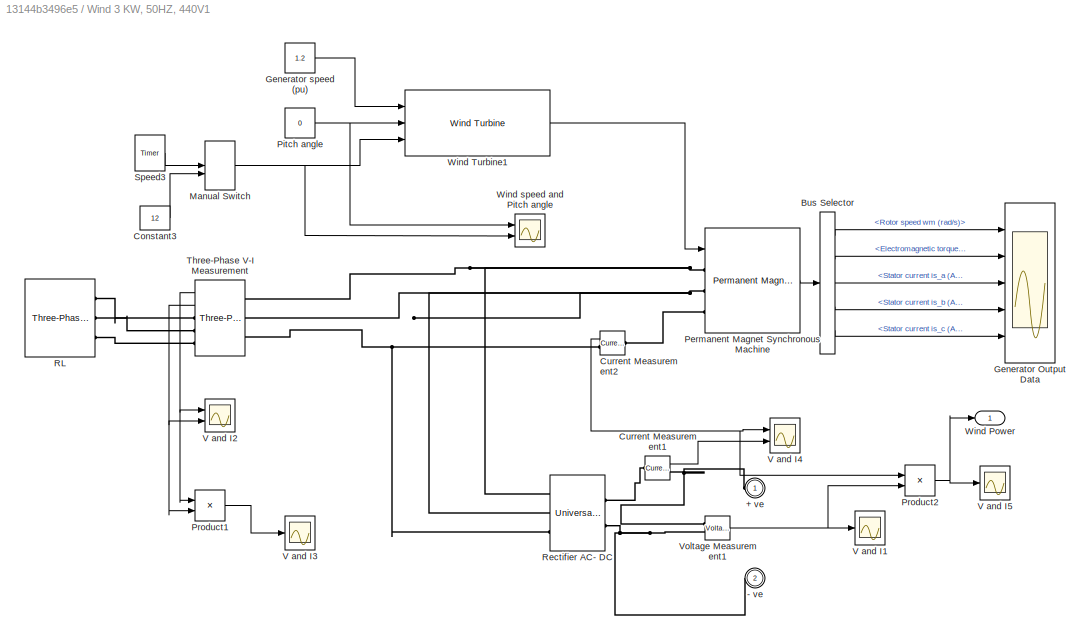
BLOCK [SubSystem] Wind 3 KW, 50HZ, 440V1
  Ports = [0, 1, 0, 0, 0, 0, 2]
  RequestExecContextInheritance = off
  Variant = off
BLOCK [PMIOPort] Wind 3 KW, 50HZ, 440V1/+ ve
  Port = 1
  Side = Right
BLOCK [PMIOPort] Wind 3 KW, 50HZ, 440V1/- ve
  Port = 2
  Side = Right
BLOCK [BusSelector] Wind 3 KW, 50HZ, 440V1/Bus Selector
  OutputAsBus = off
  OutputSignals = Rotor speed wm (rad/s),Electromagnetic torque Te (N*m),Stator current is_a (A),Stator current is_b (A),Stator current is_c (A)
  Ports = [1, 5]
BLOCK [Constant] Wind 3 KW, 50HZ, 440V1/Constant3
  Value = 12
BLOCK [Reference] Wind 3 KW, 50HZ, 440V1/Current Measurement1  REF=powerlib/Measurements/Current Measurement
  Ports = [0, 1, 0, 0, 0, 1, 1]
  SourceBlock = powerlib/Measurements/Current Measurement
  SourceProductBaseCode = PS
  SourceProductName = Simscape Power Systems
  SourceType = Current Measurement
  UserDataPersistent = on
BLOCK [Reference] Wind 3 KW, 50HZ, 440V1/Current Measurement2  REF=powerlib/Measurements/Current Measurement
  Ports = [0, 1, 0, 0, 0, 1, 1]
  SourceBlock = powerlib/Measurements/Current Measurement
  SourceProductBaseCode = PS
  SourceProductName = Simscape Power Systems
  SourceType = Current Measurement
  UserDataPersistent = on
BLOCK [Scope] Wind 3 KW, 50HZ, 440V1/Generator Output Data
  NumInputPorts = 5
  Ports = [5]
  ScopeSpecificationString = C++SS(StrPVP('Location','[6, 53, 1286, 759]'),StrPVP('Open','off'),MxPVP('AxesTitles',53,'struct(''axes1'',''%<SignalLabel>'',''axes2'',''%<SignalLabel>'',''axes3'',''%<SignalLabel>'',''axes4'',''%<SignalLabel>'',''axes5'',''%<SignalLabel>'')'),MxPVP('ScopeGraphics',56,'struct(''FigureColor'',''[0.501960784313725 0.501960784313725 0.501960784313725]'',''AxesColor'',''[0 0 0]'',''AxesTickColor'',''...<+500ch>
BLOCK [Constant] Wind 3 KW, 50HZ, 440V1/Generator speed (pu)
  Value = 1.2
BLOCK [ManualSwitch] Wind 3 KW, 50HZ, 440V1/Manual Switch
  CurrentSetting = 0
BLOCK [Reference] Wind 3 KW, 50HZ, 440V1/Permanent Magnet Synchronous Machine  REF=powerlib/Machines/Permanent Magnet
Synchronous Machine
  Ports = [1, 1, 0, 0, 0, 3]
  SourceBlock = powerlib/Machines/Permanent Magnet\nSynchronous Machine
  SourceProductBaseCode = PS
  SourceProductName = Simscape Power Systems
  SourceType = Permanent Magnet Synchronous Machine
BLOCK [Constant] Wind 3 KW, 50HZ, 440V1/Pitch angle
  Value = 0
BLOCK [Product] Wind 3 KW, 50HZ, 440V1/Product1
  InputSameDT = off
  OutDataTypeStr = Inherit: Inherit via internal rule
  Ports = [2, 1]
  RndMeth = Floor
  SaturateOnIntegerOverflow = off
BLOCK [Product] Wind 3 KW, 50HZ, 440V1/Product2
  InputSameDT = off
  OutDataTypeStr = Inherit: Inherit via internal rule
  Ports = [2, 1]
  RndMeth = Floor
  SaturateOnIntegerOverflow = off
BLOCK [Reference] Wind 3 KW, 50HZ, 440V1/RL   REF=powerlib/Elements/Three-Phase
Parallel RLC Load
  AttributesFormatString = \n
  Ports = [0, 0, 0, 0, 0, 3]
  SourceBlock = powerlib/Elements/Three-Phase\nParallel RLC Load
  SourceProductBaseCode = PS
  SourceProductName = Simscape Power Systems
  SourceType = Three-Phase Parallel RLC Load
BLOCK [Reference] Wind 3 KW, 50HZ, 440V1/Rectifier AC- DC  REF=powerlib/Power
Electronics/Universal Bridge
  Ports = [0, 0, 0, 0, 0, 3, 2]
  SourceBlock = powerlib/Power\nElectronics/Universal Bridge
  SourceProductBaseCode = PS
  SourceProductName = Simscape Power Systems
  SourceType = Universal Bridge
BLOCK [Reference] Wind 3 KW, 50HZ, 440V1/Speed3  REF=powerlib_extras/Control 
Blocks/Timer
  Ports = [0, 1]
  SourceBlock = powerlib_extras/Control \nBlocks/Timer
  SourceType = Timer
BLOCK [Reference] Wind 3 KW, 50HZ, 440V1/Three-Phase V-I Measurement  REF=powerlib/Measurements/Three-Phase
V-I Measurement
  Ports = [0, 2, 0, 0, 0, 3, 3]
  SourceBlock = powerlib/Measurements/Three-Phase\nV-I Measurement
  SourceProductBaseCode = PS
  SourceProductName = Simscape Power Systems
  SourceType = Three-Phase VI Measurement
BLOCK [Scope] Wind 3 KW, 50HZ, 440V1/V and I1
  NumInputPorts = 1
  Ports = [1]
  ScopeSpecificationString = C++SS(StrPVP('Location','[6, 53, 1286, 759]'),StrPVP('Open','off'),StrPVP('ZoomMode','xonly'),MxPVP('AxesTitles',53,'struct(''axes1'',''%<SignalLabel>'')'),MxPVP('ScopeGraphics',56,'struct(''FigureColor'',''[0.5 0.5 0.5]'',''AxesColor'',''[0 0 0]'',''AxesTickColor'',''[1 1 1]'',''LineColors'',''[1 1 0;1 0 1;0 1 1;1 0 0;0 1 0;0 0 1]'',''LineStyles'',''-|-|-|-|-|-'',''LineWidths'',''[0.5 0.5 0.5 0.5...<+364ch>
BLOCK [Scope] Wind 3 KW, 50HZ, 440V1/V and I2
  NumInputPorts = 2
  Ports = [2]
  ScopeSpecificationString = C++SS(StrPVP('Location','[6, 53, 1286, 759]'),StrPVP('Open','off'),StrPVP('ZoomMode','xonly'),MxPVP('AxesTitles',53,'struct(''axes1'',''%<SignalLabel>'',''axes2'',''%<SignalLabel>'')'),MxPVP('ScopeGraphics',56,'struct(''FigureColor'',''[0.5 0.5 0.5]'',''AxesColor'',''[0 0 0]'',''AxesTickColor'',''[1 1 1]'',''LineColors'',''[1 1 0;1 0 1;0 1 1;1 0 0;0 1 0;0 0 1]'',''LineStyles'',''-|-|-|-|-|-'',''Li...<+401ch>
BLOCK [Scope] Wind 3 KW, 50HZ, 440V1/V and I3
  NumInputPorts = 1
  Ports = [1]
  ScopeSpecificationString = C++SS(StrPVP('Location','[6, 53, 1286, 759]'),StrPVP('Open','off'),StrPVP('ZoomMode','xonly'),MxPVP('AxesTitles',53,'struct(''axes1'',''%<SignalLabel>'')'),MxPVP('ScopeGraphics',56,'struct(''FigureColor'',''[0.5 0.5 0.5]'',''AxesColor'',''[0 0 0]'',''AxesTickColor'',''[1 1 1]'',''LineColors'',''[1 1 0;1 0 1;0 1 1;1 0 0;0 1 0;0 0 1]'',''LineStyles'',''-|-|-|-|-|-'',''LineWidths'',''[0.5 0.5 0.5 0.5...<+363ch>
BLOCK [Scope] Wind 3 KW, 50HZ, 440V1/V and I4
  NumInputPorts = 2
  Ports = [2]
  ScopeSpecificationString = Simulink.scopes.TimeScopeBlockCfg('CurrentConfiguration', extmgr.ConfigurationSet(extmgr.Configuration('Core','General UI',true),extmgr.Configuration('Core','Source UI',true),extmgr.Configuration('Sources','WiredSimulink',true,'DataLoggingVariableName','ScopeData6','DataLoggingSaveFormat','StructureWithTime','DataLoggingDecimation','1','DataLoggingDecimateData',true),extmgr.Configuration('Visuals'...<+1735ch>
BLOCK [Scope] Wind 3 KW, 50HZ, 440V1/V and I5
  NumInputPorts = 1
  Ports = [1]
  ScopeSpecificationString = C++SS(StrPVP('Location','[6, 56, 1286, 762]'),StrPVP('Open','off'),StrPVP('ZoomMode','xonly'),MxPVP('AxesTitles',53,'struct(''axes1'',''%<SignalLabel>'')'),MxPVP('ScopeGraphics',56,'struct(''FigureColor'',''[0.5 0.5 0.5]'',''AxesColor'',''[0 0 0]'',''AxesTickColor'',''[1 1 1]'',''LineColors'',''[1 1 0;1 0 1;0 1 1;1 0 0;0 1 0;0 0 1]'',''LineStyles'',''-|-|-|-|-|-'',''LineWidths'',''[0.5 0.5 0.5 0.5...<+363ch>
BLOCK [Reference] Wind 3 KW, 50HZ, 440V1/Voltage Measurement1  REF=powerlib/Measurements/Voltage Measurement
  Ports = [0, 1, 0, 0, 0, 2]
  SourceBlock = powerlib/Measurements/Voltage Measurement
  SourceProductBaseCode = PS
  SourceProductName = Simscape Power Systems
  SourceType = Voltage Measurement
  UserDataPersistent = on
BLOCK [Outport] Wind 3 KW, 50HZ, 440V1/Wind Power
  IconDisplay = Port number
BLOCK [Reference] Wind 3 KW, 50HZ, 440V1/Wind Turbine1  REF=re_lib/Wind Generation/Wind Turbine
  Ports = [3, 1]
  SourceBlock = re_lib/Wind Generation/Wind Turbine
  SourceProductBaseCode = PS
  SourceProductName = Simscape Power Systems
  SourceType = Wind Turbine
BLOCK [Scope] Wind 3 KW, 50HZ, 440V1/Wind speed and Pitch angle
  NumInputPorts = 2
  Ports = [2]
  ScopeSpecificationString = C++SS(StrPVP('Location','[6, 53, 1286, 759]'),StrPVP('Open','off'),MxPVP('AxesTitles',53,'struct(''axes1'',''Pitch angle'',''axes2'',''Wind speed'')'),MxPVP('ScopeGraphics',56,'struct(''FigureColor'',''[0.5 0.5 0.5]'',''AxesColor'',''[0 0 0]'',''AxesTickColor'',''[1 1 1]'',''LineColors'',''[1 1 0;1 0 1;0 1 1;1 0 0;0 1 0;0 0 1]'',''LineStyles'',''-|-|-|-|-|-'',''LineWidths'',''[0.5 0.5 0.5 0.5 0.5 ...<+364ch>
BLOCK [Reference] powergui  REF=powerlib/powergui
  Ports = []
  Priority = 1
  SourceBlock = powerlib/powergui
  SourceProductBaseCode = PS
  SourceProductName = Simscape Power Systems
  SourceType = PSB option menu block
ANNOTATION 1 kW  PV Array 1: Diode characteristic Id=Isat*[exp(Vd/VT) -1] where: Id = diode cuurent (A) Vd = diode voltage (V) Isat = diode saturation current (A) VT = temperature voltage = k*T/q*Qd*Ncell*Nser T = cell temperature (K), k = Boltzman constant = 1.3806e-23 J.K^-1 q = electron charge = 1.6022e-19 C Qd = diode quality factor Ncell= number of series-connected cells per module Nser = number of series-connected modul...<+13ch>
ANNOTATION 1 kW  PV Array 1/Diode: Id=Isat*[exp(Vd/Vt)-1]
ANNOTATION 1 kW  PV Array 2: Diode characteristic Id=Isat*[exp(Vd/VT) -1] where: Id = diode cuurent (A) Vd = diode voltage (V) Isat = diode saturation current (A) VT = temperature voltage = k*T/q*Qd*Ncell*Nser T = cell temperature (K), k = Boltzman constant = 1.3806e-23 J.K^-1 q = electron charge = 1.6022e-19 C Qd = diode quality factor Ncell= number of series-connected cells per module Nser = number of series-connected modul...<+13ch>
ANNOTATION 1 kW  PV Array 2/Diode: Id=Isat*[exp(Vd/Vt)-1]
ANNOTATION Subsystem1: Fuzzy MPPT Controller
ANNOTATION Subsystem2: Fuzzy MPPT Controller
ANNOTATION VSC Control2: VSC Main Controller
ANNOTATION VSC Control2/Current Regulator: (Vd_prim - Vd_conv) ~= + Iq * Ltot
ANNOTATION VSC Control2/Current Regulator: (Vq_prim - Vq_conv) ~ = - Id * Ltot
ANNOTATION VSC Control2/Current Regulator: Current Regulator (with feedforward)
ANNOTATION VSC Control2/Current Regulator: For Ltot >> Rtot :
ANNOTATION VSC Control2/Current Regulator: Id positive --> The converter generates active power ("Inverter mode") = Active Power P positive
ANNOTATION VSC Control2/Current Regulator: Iq positive --> The converter absorbs reactive power ("Inductive mode") = Reactive Power Q negative
ANNOTATION VSC Control2/Current Regulator: Ltot = Lxfo + Lchoke Rtot = Rxfo + Rchoke
ANNOTATION VSC Control2/Current Regulator: Sign Convention: Current going out of the converter = positive current
ANNOTATION VSC Control2/Current Regulator: Vd_mes + Id*R - Iq*L + deriv(Id)*L= Vd_conv
ANNOTATION VSC Control2/Current Regulator: Vq_mes + Id*L + Iq*R + deriv(Iq)*L= Vq_conv
ANNOTATION VSC Control2/Current Regulator: harmonic filter neglected
ANNOTATION VSC Control2/Uabc_ref Generation max (m) = 1: (Correction for delai of Ts_Control)
ANNOTATION VSC Control2/Uabc_ref Generation max (m) = 1: (Correction for transformer D1 connection)
LINE 1 kW  PV Array 1/Add:1 -> 1 kW  PV Array 1/Bus Creator:1
LINE 1 kW  PV Array 1/Bus Creator:1 -> 1 kW  PV Array 1/m:1
LINE 1 kW  PV Array 1/Diode/Add:1 -> 1 kW  PV Array 1/Diode/Product:2
LINE 1 kW  PV Array 1/Diode/Is:1 -> 1 kW  PV Array 1/Diode/Product:1
LINE 1 kW  PV Array 1/Diode/Math Function:1 -> 1 kW  PV Array 1/Diode/Add:1
LINE 1 kW  PV Array 1/Diode/Product1:1 -> 1 kW  PV Array 1/Diode/Math Function:1
NET 1 kW  PV Array 1/Diode/Product:1 -> 1 kW  PV Array 1/Diode/Id:1, 1 kW  PV Array 1/Diode/Idiode:1
LINE 1 kW  PV Array 1/Diode/VT:1 -> 1 kW  PV Array 1/Diode/Product1:2
NET 1 kW  PV Array 1/Diode/Vd:1 -> 1 kW  PV Array 1/Diode/Product1:1, 1 kW  PV Array 1/Diode/Vdiode:1
LINE 1 kW  PV Array 1/Diode/one:1 -> 1 kW  PV Array 1/Diode/Add:2
LINE 1 kW  PV Array 1/Diode:1 -> 1 kW  PV Array 1/Add:1
LINE 1 kW  PV Array 1/Diode:2 -> 1 kW  PV Array 1/Bus Creator:3
NET 1 kW  PV Array 1/I_PV:1 -> 1 kW  PV Array 1/Bus Creator:2, 1 kW  PV Array 1/Rs_:1
LINE 1 kW  PV Array 1/Iph_:1 -> 1 kW  PV Array 1/Product1:1
NET 1 kW  PV Array 1/Ir:1 -> 1 kW  PV Array 1/Bus Creator:4, 1 kW  PV Array 1/t0_kW:1
LINE 1 kW  PV Array 1/Product1:1 -> 1 kW  PV Array 1/Iph:1
LINE 1 kW  PV Array 1/Rs_:1 -> 1 kW  PV Array 1/Add:2
LINE 1 kW  PV Array 1/t0_kW:1 -> 1 kW  PV Array 1/Product1:2
LINE 1 kW  PV Array 1:1 -> Scope5:1
LINE 1 kW  PV Array 2/Add:1 -> 1 kW  PV Array 2/Bus Creator:1
LINE 1 kW  PV Array 2/Bus Creator:1 -> 1 kW  PV Array 2/m:1
LINE 1 kW  PV Array 2/Diode/Add:1 -> 1 kW  PV Array 2/Diode/Product:2
LINE 1 kW  PV Array 2/Diode/Is:1 -> 1 kW  PV Array 2/Diode/Product:1
LINE 1 kW  PV Array 2/Diode/Math Function:1 -> 1 kW  PV Array 2/Diode/Add:1
LINE 1 kW  PV Array 2/Diode/Product1:1 -> 1 kW  PV Array 2/Diode/Math Function:1
NET 1 kW  PV Array 2/Diode/Product:1 -> 1 kW  PV Array 2/Diode/Id:1, 1 kW  PV Array 2/Diode/Idiode:1
LINE 1 kW  PV Array 2/Diode/VT:1 -> 1 kW  PV Array 2/Diode/Product1:2
NET 1 kW  PV Array 2/Diode/Vd:1 -> 1 kW  PV Array 2/Diode/Product1:1, 1 kW  PV Array 2/Diode/Vdiode:1
LINE 1 kW  PV Array 2/Diode/one:1 -> 1 kW  PV Array 2/Diode/Add:2
LINE 1 kW  PV Array 2/Diode:1 -> 1 kW  PV Array 2/Add:1
LINE 1 kW  PV Array 2/Diode:2 -> 1 kW  PV Array 2/Bus Creator:3
NET 1 kW  PV Array 2/I_PV:1 -> 1 kW  PV Array 2/Bus Creator:2, 1 kW  PV Array 2/Rs_:1
LINE 1 kW  PV Array 2/Iph_:1 -> 1 kW  PV Array 2/Product1:1
NET 1 kW  PV Array 2/Ir:1 -> 1 kW  PV Array 2/Bus Creator:4, 1 kW  PV Array 2/t0_kW:1
LINE 1 kW  PV Array 2/Product1:1 -> 1 kW  PV Array 2/Iph:1
LINE 1 kW  PV Array 2/Rs_:1 -> 1 kW  PV Array 2/Add:2
LINE 1 kW  PV Array 2/t0_kW:1 -> 1 kW  PV Array 2/Product1:2
LINE 1 kW  PV Array 2:1 -> Scope12:1
NET Constant1:1 -> 1 kW  PV Array 2:1, Subsystem1:1
NET Constant:1 -> 1 kW  PV Array 1:1, Subsystem2:1
LINE From1:1 -> VSC Control2:3
LINE From2:1 -> VSC Control2:1
LINE From3:1 -> VSC Control2:2
LINE Mean:1 -> Scope:1
NET Subsystem1/Current Measurement8:1 -> Subsystem1/Current :1, Subsystem1/Mux12:2
LINE Subsystem1/Demux4:1 -> Subsystem1/Scope37:1
LINE Subsystem1/Demux4:2 -> Subsystem1/Mosfet5:1
LINE Subsystem1/Fuzzy Logic Controller with Ruleviewer:1 -> Subsystem1/PWM Generator4:1
LINE Subsystem1/Ir:1 -> Subsystem1/Mux14:1
NET Subsystem1/MPPT Voltage 1:1 -> Subsystem1/Mux14:2, Subsystem1/PV voltage :1, Subsystem1/Scope2:1
LINE Subsystem1/MPPT Voltage :1 -> Subsystem1/Mux12:1
LINE Subsystem1/Mux12:1 -> Subsystem1/Scope34:1
LINE Subsystem1/Mux14:1 -> Subsystem1/Fuzzy Logic Controller with Ruleviewer:1
LINE Subsystem1/PWM Generator4:1 -> Subsystem1/Demux4:1
LINE Subsystem1:1 -> Scope8:1
LINE Subsystem1:2 -> Scope8:2
NET Subsystem2/Current Measurement8:1 -> Subsystem2/Current :1, Subsystem2/Mux12:2
LINE Subsystem2/Demux4:1 -> Subsystem2/Scope37:1
LINE Subsystem2/Demux4:2 -> Subsystem2/Mosfet5:1
LINE Subsystem2/Fuzzy Logic Controller with Ruleviewer:1 -> Subsystem2/PWM Generator4:1
LINE Subsystem2/Ir:1 -> Subsystem2/Mux14:1
NET Subsystem2/MPPT Voltage 1:1 -> Subsystem2/Mux14:2, Subsystem2/PV voltage :1, Subsystem2/Scope2:1
LINE Subsystem2/MPPT Voltage :1 -> Subsystem2/Mux12:1
LINE Subsystem2/Mux12:1 -> Subsystem2/Scope34:1
LINE Subsystem2/Mux14:1 -> Subsystem2/Fuzzy Logic Controller with Ruleviewer:1
LINE Subsystem2/PWM Generator4:1 -> Subsystem2/Demux4:1
LINE Subsystem2:1 -> Scope3:1
LINE Subsystem2:2 -> Scope3:2
LINE Three-Phase V-I Measurement1:1 -> Scope1:1
LINE Three-Phase V-I Measurement1:2 -> Scope1:2
LINE Three-Phase V-I Measurement5:1 -> Scope11:1
LINE Three-Phase V-I Measurement5:2 -> Scope11:2
LINE Three-Phase V-I Measurement6:1 -> Scope10:1
LINE Three-Phase V-I Measurement6:2 -> Scope10:2
LINE Three-Phase V-I Measurement7:1 -> Scope9:1
LINE VM1:1 -> Scope7:1
LINE VM2:1 -> Scope13:1
LINE VM:1 -> Mean:1
LINE VSC Control2/Current Regulator/ANFIS - Iq reg:1 -> VSC Control2/Current Regulator/Mux1:2
LINE VSC Control2/Current Regulator/ANFIS - id reg:1 -> VSC Control2/Current Regulator/Mux1:1
LINE VSC Control2/Current Regulator/Add1:1 -> VSC Control2/Current Regulator/Mux:1
LINE VSC Control2/Current Regulator/Add2:1 -> VSC Control2/Current Regulator/Saturation:1
LINE VSC Control2/Current Regulator/Add3:1 -> VSC Control2/Current Regulator/Mux:2
NET VSC Control2/Current Regulator/Demux1:1 -> VSC Control2/Current Regulator/Ltot_pu2:1, VSC Control2/Current Regulator/Rtot_pu1:1
NET VSC Control2/Current Regulator/Demux1:2 -> VSC Control2/Current Regulator/Ltot_pu1:1, VSC Control2/Current Regulator/Rtot_pu5:1
LINE VSC Control2/Current Regulator/Demux:1 -> VSC Control2/Current Regulator/Add1:1
LINE VSC Control2/Current Regulator/Demux:2 -> VSC Control2/Current Regulator/Add3:1
LINE VSC Control2/Current Regulator/IdIq_mes:1 -> VSC Control2/Current Regulator/Sum:1
NET VSC Control2/Current Regulator/IdIq_ref:1 -> VSC Control2/Current Regulator/Demux1:1, VSC Control2/Current Regulator/Sum:2
LINE VSC Control2/Current Regulator/Ltot_pu1:1 -> VSC Control2/Current Regulator/Add1:3
LINE VSC Control2/Current Regulator/Ltot_pu2:1 -> VSC Control2/Current Regulator/Add3:3
LINE VSC Control2/Current Regulator/Mux1:1 -> VSC Control2/Current Regulator/Add2:1
NET VSC Control2/Current Regulator/Mux:1 -> VSC Control2/Current Regulator/Add2:2, VSC Control2/Current Regulator/PI_Ireg1:1
LINE VSC Control2/Current Regulator/Rtot_pu1:1 -> VSC Control2/Current Regulator/Add1:2
LINE VSC Control2/Current Regulator/Rtot_pu5:1 -> VSC Control2/Current Regulator/Add3:2
LINE VSC Control2/Current Regulator/Saturation:1 -> VSC Control2/Current Regulator/VdVq_conv:1
NET VSC Control2/Current Regulator/Sum:1 -> VSC Control2/Current Regulator/ANFIS - Iq reg:1, VSC Control2/Current Regulator/ANFIS - id reg:1
LINE VSC Control2/Current Regulator/VdVq_mes:1 -> VSC Control2/Current Regulator/Demux:1
LINE VSC Control2/Current Regulator:1 -> VSC Control2/Uabc_ref Generation max (m) = 1:2
LINE VSC Control2/Iabc_prim:1 -> VSC Control2/PLL & Measurements:2
LINE VSC Control2/Iq_ref:1 -> VSC Control2/Mux:2
LINE VSC Control2/Mux:1 -> VSC Control2/Current Regulator:3
LINE VSC Control2/PLL & Measurements/Iabc_prim:1 -> VSC Control2/PLL & Measurements/V->pu1:1
LINE VSC Control2/PLL & Measurements/PLL (3ph):1 -> VSC Control2/PLL & Measurements/Terminator:1
NET VSC Control2/PLL & Measurements/PLL (3ph):2 -> VSC Control2/PLL & Measurements/abc to dq0:2, VSC Control2/PLL & Measurements/abc to dq1:2, VSC Control2/PLL & Measurements/wt:1
NET VSC Control2/PLL & Measurements/Selector1:1 -> VSC Control2/PLL & Measurements/Goto3:1, VSC Control2/PLL & Measurements/IdIq_prim:1
LINE VSC Control2/PLL & Measurements/Selector2:1 -> VSC Control2/PLL & Measurements/VdVq_prim:1
LINE VSC Control2/PLL & Measurements/V->pu1:1 -> VSC Control2/PLL & Measurements/abc to dq1:1
NET VSC Control2/PLL & Measurements/V->pu:1 -> VSC Control2/PLL & Measurements/PLL (3ph):1, VSC Control2/PLL & Measurements/abc to dq0:1
LINE VSC Control2/PLL & Measurements/Vabc_prim:1 -> VSC Control2/PLL & Measurements/V->pu:1
LINE VSC Control2/PLL & Measurements/abc to dq0:1 -> VSC Control2/PLL & Measurements/Selector2:1
LINE VSC Control2/PLL & Measurements/abc to dq1:1 -> VSC Control2/PLL & Measurements/Selector1:1
LINE VSC Control2/PLL & Measurements:1 -> VSC Control2/Uabc_ref Generation max (m) = 1:1
LINE VSC Control2/PLL & Measurements:2 -> VSC Control2/Current Regulator:1
LINE VSC Control2/PLL & Measurements:3 -> VSC Control2/Current Regulator:2
LINE VSC Control2/PWM Generator (2-Level):1 -> VSC Control2/Pulses:1
LINE VSC Control2/Uabc_ref Generation max (m) = 1/Add1:1 -> VSC Control2/Uabc_ref Generation max (m) = 1/Add2:2
LINE VSC Control2/Uabc_ref Generation max (m) = 1/Add2:1 -> VSC Control2/Uabc_ref Generation max (m) = 1/Trigonometric Function:1
LINE VSC Control2/Uabc_ref Generation max (m) = 1/Complex to Magnitude-Angle:1 -> VSC Control2/Uabc_ref Generation max (m) = 1/Saturation:1
LINE VSC Control2/Uabc_ref Generation max (m) = 1/Complex to Magnitude-Angle:2 -> VSC Control2/Uabc_ref Generation max (m) = 1/Add2:1
LINE VSC Control2/Uabc_ref Generation max (m) = 1/Constant1:1 -> VSC Control2/Uabc_ref Generation max (m) = 1/Gain1:1
LINE VSC Control2/Uabc_ref Generation max (m) = 1/Constant2:1 -> VSC Control2/Uabc_ref Generation max (m) = 1/Add1:2
LINE VSC Control2/Uabc_ref Generation max (m) = 1/Constant3:1 -> VSC Control2/Uabc_ref Generation max (m) = 1/Product:2
LINE VSC Control2/Uabc_ref Generation max (m) = 1/Constant4:1 -> VSC Control2/Uabc_ref Generation max (m) = 1/Add1:4
LINE VSC Control2/Uabc_ref Generation max (m) = 1/Constant:1 -> VSC Control2/Uabc_ref Generation max (m) = 1/Add1:3
LINE VSC Control2/Uabc_ref Generation max (m) = 1/Demux1:1 -> VSC Control2/Uabc_ref Generation max (m) = 1/Real-Imag to Complex:1
LINE VSC Control2/Uabc_ref Generation max (m) = 1/Demux1:2 -> VSC Control2/Uabc_ref Generation max (m) = 1/Real-Imag to Complex:2
LINE VSC Control2/Uabc_ref Generation max (m) = 1/Gain1:1 -> VSC Control2/Uabc_ref Generation max (m) = 1/Product:1
LINE VSC Control2/Uabc_ref Generation max (m) = 1/Product1:1 -> VSC Control2/Uabc_ref Generation max (m) = 1/Demux1:1
LINE VSC Control2/Uabc_ref Generation max (m) = 1/Product2:1 -> VSC Control2/Uabc_ref Generation max (m) = 1/Uabc_ref:1
LINE VSC Control2/Uabc_ref Generation max (m) = 1/Product:1 -> VSC Control2/Uabc_ref Generation max (m) = 1/Product1:2
LINE VSC Control2/Uabc_ref Generation max (m) = 1/Real-Imag to Complex:1 -> VSC Control2/Uabc_ref Generation max (m) = 1/Complex to Magnitude-Angle:1
NET VSC Control2/Uabc_ref Generation max (m) = 1/Saturation:1 -> VSC Control2/Uabc_ref Generation max (m) = 1/Goto1:1, VSC Control2/Uabc_ref Generation max (m) = 1/Product2:1
LINE VSC Control2/Uabc_ref Generation max (m) = 1/Trigonometric Function:1 -> VSC Control2/Uabc_ref Generation max (m) = 1/Product2:2
LINE VSC Control2/Uabc_ref Generation max (m) = 1/VdVq_conv:1 -> VSC Control2/Uabc_ref Generation max (m) = 1/Product1:1
LINE VSC Control2/Uabc_ref Generation max (m) = 1/wt:1 -> VSC Control2/Uabc_ref Generation max (m) = 1/Add1:1
LINE VSC Control2/Uabc_ref Generation max (m) = 1:1 -> VSC Control2/Unit Delay:1
LINE VSC Control2/Unit Delay:1 -> VSC Control2/PWM Generator (2-Level):1
NET VSC Control2/VDC Regulator/PI:1 -> VSC Control2/VDC Regulator/Goto4:1, VSC Control2/VDC Regulator/Id_ref:1, VSC Control2/VDC Regulator/Scope1:1, VSC Control2/VDC Regulator/Scope2:2
NET VSC Control2/VDC Regulator/Rtot_pu3:1 -> VSC Control2/VDC Regulator/PI:1, VSC Control2/VDC Regulator/Scope2:1, VSC Control2/VDC Regulator/Scope:1
LINE VSC Control2/VDC Regulator/Sum:1 -> VSC Control2/VDC Regulator/Rtot_pu3:1
LINE VSC Control2/VDC Regulator/Vdc_mes:1 -> VSC Control2/VDC Regulator/Sum:1
NET VSC Control2/VDC Regulator/Vdc_ref:1 -> VSC Control2/VDC Regulator/Goto1:1, VSC Control2/VDC Regulator/Sum:2
LINE VSC Control2/VDC Regulator:1 -> VSC Control2/Mux:1
LINE VSC Control2/Vabc_prim:1 -> VSC Control2/PLL & Measurements:1
LINE VSC Control2/Vdc_mes:1 -> VSC Control2/VDC Regulator:1
LINE VSC Control2/Vdc_ref1:1 -> VSC Control2/VDC Regulator:2
NET VSC Control2:1 -> Universal Bridge1:1, Universal Bridge:1
LINE Voltage Measurement2:1 -> Goto:1
LINE Wind 3 KW, 50HZ, 440V1/Bus Selector:1 -> Wind 3 KW, 50HZ, 440V1/Generator Output Data:1
LINE Wind 3 KW, 50HZ, 440V1/Bus Selector:2 -> Wind 3 KW, 50HZ, 440V1/Generator Output Data:2
LINE Wind 3 KW, 50HZ, 440V1/Bus Selector:3 -> Wind 3 KW, 50HZ, 440V1/Generator Output Data:3
LINE Wind 3 KW, 50HZ, 440V1/Bus Selector:4 -> Wind 3 KW, 50HZ, 440V1/Generator Output Data:4
LINE Wind 3 KW, 50HZ, 440V1/Bus Selector:5 -> Wind 3 KW, 50HZ, 440V1/Generator Output Data:5
LINE Wind 3 KW, 50HZ, 440V1/Constant3:1 -> Wind 3 KW, 50HZ, 440V1/Manual Switch:2
LINE Wind 3 KW, 50HZ, 440V1/Current Measurement1:1 -> Wind 3 KW, 50HZ, 440V1/V and I4:2
NET Wind 3 KW, 50HZ, 440V1/Current Measurement2:1 -> Wind 3 KW, 50HZ, 440V1/Product2:1, Wind 3 KW, 50HZ, 440V1/V and I4:1
LINE Wind 3 KW, 50HZ, 440V1/Generator speed (pu):1 -> Wind 3 KW, 50HZ, 440V1/Wind Turbine1:1
NET Wind 3 KW, 50HZ, 440V1/Manual Switch:1 -> Wind 3 KW, 50HZ, 440V1/Wind Turbine1:3, Wind 3 KW, 50HZ, 440V1/Wind speed and Pitch angle:2
LINE Wind 3 KW, 50HZ, 440V1/Permanent Magnet Synchronous Machine:1 -> Wind 3 KW, 50HZ, 440V1/Bus Selector:1
NET Wind 3 KW, 50HZ, 440V1/Pitch angle:1 -> Wind 3 KW, 50HZ, 440V1/Wind Turbine1:2, Wind 3 KW, 50HZ, 440V1/Wind speed and Pitch angle:1
LINE Wind 3 KW, 50HZ, 440V1/Product1:1 -> Wind 3 KW, 50HZ, 440V1/V and I3:1
NET Wind 3 KW, 50HZ, 440V1/Product2:1 -> Wind 3 KW, 50HZ, 440V1/V and I5:1, Wind 3 KW, 50HZ, 440V1/Wind Power:1
LINE Wind 3 KW, 50HZ, 440V1/Speed3:1 -> Wind 3 KW, 50HZ, 440V1/Manual Switch:1
NET Wind 3 KW, 50HZ, 440V1/Three-Phase V-I Measurement:1 -> Wind 3 KW, 50HZ, 440V1/Product1:1, Wind 3 KW, 50HZ, 440V1/V and I2:1
NET Wind 3 KW, 50HZ, 440V1/Three-Phase V-I Measurement:2 -> Wind 3 KW, 50HZ, 440V1/Product1:2, Wind 3 KW, 50HZ, 440V1/V and I2:2
NET Wind 3 KW, 50HZ, 440V1/Voltage Measurement1:1 -> Wind 3 KW, 50HZ, 440V1/Product2:2, Wind 3 KW, 50HZ, 440V1/V and I1:1
LINE Wind 3 KW, 50HZ, 440V1/Wind Turbine1:1 -> Wind 3 KW, 50HZ, 440V1/Permanent Magnet Synchronous Machine:1
LINE Wind 3 KW, 50HZ, 440V1:1 -> Scope4:1
PLINE 1 kW  PV Array 1/+:RConn1 -- 1 kW  PV Array 1/I_PV:RConn1
PNET net1: 1 kW  PV Array 1/-:RConn1 -- 1 kW  PV Array 1/Diode:RConn1 -- 1 kW  PV Array 1/Iph:LConn1 -- 1 kW  PV Array 1/Rp:RConn1
PNET net2: 1 kW  PV Array 1/Diode/A:RConn1 -- 1 kW  PV Array 1/Diode/Id:LConn1 -- 1 kW  PV Array 1/Diode/Vd:LConn1
PNET net3: 1 kW  PV Array 1/Diode/Id:RConn1 -- 1 kW  PV Array 1/Diode/K:RConn1 -- 1 kW  PV Array 1/Diode/Vd:LConn2
PNET net4: 1 kW  PV Array 1/Diode:LConn1 -- 1 kW  PV Array 1/Iph:RConn1 -- 1 kW  PV Array 1/Rp:LConn1 -- 1 kW  PV Array 1/Rs:RConn1
PLINE 1 kW  PV Array 1/I_PV:LConn1 -- 1 kW  PV Array 1/Rs:LConn1
PLINE 1 kW  PV Array 1:RConn1 -- Subsystem2:LConn1
PLINE 1 kW  PV Array 1:RConn2 -- Subsystem2:LConn2
PLINE 1 kW  PV Array 2/+:RConn1 -- 1 kW  PV Array 2/I_PV:RConn1
PNET net5: 1 kW  PV Array 2/-:RConn1 -- 1 kW  PV Array 2/Diode:RConn1 -- 1 kW  PV Array 2/Iph:LConn1 -- 1 kW  PV Array 2/Rp:RConn1
PNET net6: 1 kW  PV Array 2/Diode/A:RConn1 -- 1 kW  PV Array 2/Diode/Id:LConn1 -- 1 kW  PV Array 2/Diode/Vd:LConn1
PNET net7: 1 kW  PV Array 2/Diode/Id:RConn1 -- 1 kW  PV Array 2/Diode/K:RConn1 -- 1 kW  PV Array 2/Diode/Vd:LConn2
PNET net8: 1 kW  PV Array 2/Diode:LConn1 -- 1 kW  PV Array 2/Iph:RConn1 -- 1 kW  PV Array 2/Rp:LConn1 -- 1 kW  PV Array 2/Rs:RConn1
PLINE 1 kW  PV Array 2/I_PV:LConn1 -- 1 kW  PV Array 2/Rs:LConn1
PLINE 1 kW  PV Array 2:RConn1 -- Subsystem1:LConn1
PLINE 1 kW  PV Array 2:RConn2 -- Subsystem1:LConn2
PLINE B5:LConn1 -- Distributed Parameters Line1:LConn1
PLINE B5:LConn2 -- Distributed Parameters Line1:LConn2
PLINE B5:LConn3 -- Distributed Parameters Line1:LConn3
PLINE B5:RConn1 -- Three-Phase V-I Measurement5:RConn1
PLINE B5:RConn2 -- Three-Phase V-I Measurement5:RConn2
PLINE B5:RConn3 -- Three-Phase V-I Measurement5:RConn3
PLINE B6:LConn1 -- Three-Phase Transformer Inductance Matrix Type (Two Windings)3:LConn1
PLINE B6:LConn2 -- Three-Phase Transformer Inductance Matrix Type (Two Windings)3:LConn2
PLINE B6:LConn3 -- Three-Phase Transformer Inductance Matrix Type (Two Windings)3:LConn3
PLINE B6:RConn1 -- Three-Phase Breaker2:LConn1
PLINE B6:RConn2 -- Three-Phase Breaker2:LConn2
PLINE B6:RConn3 -- Three-Phase Breaker2:LConn3
PNET net9: B7:LConn1 -- Three-Phase Parallel RLC Load:LConn1 -- Three-Phase V-I Measurement1:RConn1 -- Universal Bridge1:LConn1
PNET net10: B7:LConn2 -- Three-Phase Parallel RLC Load:LConn2 -- Three-Phase V-I Measurement1:RConn2 -- Universal Bridge1:LConn2
PNET net11: B7:LConn3 -- Three-Phase Parallel RLC Load:LConn3 -- Three-Phase V-I Measurement1:RConn3 -- Universal Bridge1:LConn3
PLINE B7:RConn1 -- Three-Phase V-I Measurement7:RConn1
PLINE B7:RConn2 -- Three-Phase V-I Measurement7:RConn2
PLINE B7:RConn3 -- Three-Phase V-I Measurement7:RConn3
PNET net12: Diode1:LConn1 -- Subsystem1:RConn2 -- VM2:LConn2
PLINE Diode1:RConn1 -- Universal Bridge1:RConn2
PNET net13: Diode:LConn1 -- Subsystem2:RConn1 -- VM1:LConn1
PLINE Diode:RConn1 -- Universal Bridge1:RConn1
PLINE Distributed Parameters Line1:RConn1 -- Three-Phase V-I Measurement6:LConn1
PLINE Distributed Parameters Line1:RConn2 -- Three-Phase V-I Measurement6:LConn2
PLINE Distributed Parameters Line1:RConn3 -- Three-Phase V-I Measurement6:LConn3
PLINE L2:LConn1 -- Universal Bridge:LConn1
PLINE L2:LConn2 -- Universal Bridge:LConn2
PLINE L2:LConn3 -- Universal Bridge:LConn3
PLINE L2:RConn1 -- Three-Phase V-I Measurement1:LConn1
PLINE L2:RConn2 -- Three-Phase V-I Measurement1:LConn2
PLINE L2:RConn3 -- Three-Phase V-I Measurement1:LConn3
PNET net14: Subsystem1/+ Ve:RConn1 -- Subsystem1/Current Measurement8:RConn1 -- Subsystem1/MPPT Voltage :LConn1 -- Subsystem1/Series RLC Branch15:LConn1
PNET net15: Subsystem1/- Ve:RConn1 -- Subsystem1/MPPT Voltage 1:LConn2 -- Subsystem1/MPPT Voltage :LConn2 -- Subsystem1/Mosfet5:RConn1 -- Subsystem1/PV - Ve:RConn1 -- Subsystem1/Series RLC Branch13:RConn1 -- Subsystem1/Series RLC Branch15:RConn1
PNET net16: Subsystem1/Current Measurement8:LConn1 -- Subsystem1/Diode9:RConn1 -- Subsystem1/Series RLC Branch13:LConn1
PNET net17: Subsystem1/Diode9:LConn1 -- Subsystem1/Mosfet5:LConn1 -- Subsystem1/Series RLC Branch14:RConn1
PNET net18: Subsystem1/MPPT Voltage 1:LConn1 -- Subsystem1/PV + Ve:RConn1 -- Subsystem1/Series RLC Branch14:LConn1
PNET net19: Subsystem1:RConn1 -- Subsystem2:RConn2 -- VM1:LConn2 -- VM2:LConn1
PNET net20: Subsystem2/+ Ve:RConn1 -- Subsystem2/Current Measurement8:RConn1 -- Subsystem2/MPPT Voltage :LConn1 -- Subsystem2/Series RLC Branch15:LConn1
PNET net21: Subsystem2/- Ve:RConn1 -- Subsystem2/MPPT Voltage 1:LConn2 -- Subsystem2/MPPT Voltage :LConn2 -- Subsystem2/Mosfet5:RConn1 -- Subsystem2/PV - Ve:RConn1 -- Subsystem2/Series RLC Branch13:RConn1 -- Subsystem2/Series RLC Branch15:RConn1
PNET net22: Subsystem2/Current Measurement8:LConn1 -- Subsystem2/Diode9:RConn1 -- Subsystem2/Series RLC Branch13:LConn1
PNET net23: Subsystem2/Diode9:LConn1 -- Subsystem2/Mosfet5:LConn1 -- Subsystem2/Series RLC Branch14:RConn1
PNET net24: Subsystem2/MPPT Voltage 1:LConn1 -- Subsystem2/PV + Ve:RConn1 -- Subsystem2/Series RLC Branch14:LConn1
PLINE Three-Phase Breaker2:RConn1 -- Three-Phase V-I Measurement6:RConn1
PLINE Three-Phase Breaker2:RConn2 -- Three-Phase V-I Measurement6:RConn2
PLINE Three-Phase Breaker2:RConn3 -- Three-Phase V-I Measurement6:RConn3
PLINE Three-Phase Source1:RConn1 -- Three-Phase V-I Measurement5:LConn1
PLINE Three-Phase Source1:RConn2 -- Three-Phase V-I Measurement5:LConn2
PLINE Three-Phase Source1:RConn3 -- Three-Phase V-I Measurement5:LConn3
PLINE Three-Phase Transformer Inductance Matrix Type (Two Windings)3:RConn1 -- Three-Phase V-I Measurement7:LConn1
PLINE Three-Phase Transformer Inductance Matrix Type (Two Windings)3:RConn2 -- Three-Phase V-I Measurement7:LConn2
PLINE Three-Phase Transformer Inductance Matrix Type (Two Windings)3:RConn3 -- Three-Phase V-I Measurement7:LConn3
PNET net25: Universal Bridge:RConn1 -- VM:LConn1 -- Voltage Measurement2:LConn1 -- Wind 3 KW, 50HZ, 440V1:RConn1
PNET net26: Universal Bridge:RConn2 -- VM:LConn2 -- Voltage Measurement2:LConn2 -- Wind 3 KW, 50HZ, 440V1:RConn2
PNET net27: Wind 3 KW, 50HZ, 440V1/+ ve:RConn1 -- Wind 3 KW, 50HZ, 440V1/Current Measurement1:RConn1 -- Wind 3 KW, 50HZ, 440V1/Voltage Measurement1:LConn1
PNET net28: Wind 3 KW, 50HZ, 440V1/- ve:RConn1 -- Wind 3 KW, 50HZ, 440V1/Rectifier AC- DC:RConn2 -- Wind 3 KW, 50HZ, 440V1/Voltage Measurement1:LConn2
PLINE Wind 3 KW, 50HZ, 440V1/Current Measurement1:LConn1 -- Wind 3 KW, 50HZ, 440V1/Rectifier AC- DC:RConn1
PLINE Wind 3 KW, 50HZ, 440V1/Current Measurement2:LConn1 -- Wind 3 KW, 50HZ, 440V1/Permanent Magnet Synchronous Machine:LConn3
PNET net29: Wind 3 KW, 50HZ, 440V1/Current Measurement2:RConn1 -- Wind 3 KW, 50HZ, 440V1/Rectifier AC- DC:LConn3 -- Wind 3 KW, 50HZ, 440V1/Three-Phase V-I Measurement:LConn3
PNET net30: Wind 3 KW, 50HZ, 440V1/Permanent Magnet Synchronous Machine:LConn1 -- Wind 3 KW, 50HZ, 440V1/Rectifier AC- DC:LConn1 -- Wind 3 KW, 50HZ, 440V1/Three-Phase V-I Measurement:LConn1
PNET net31: Wind 3 KW, 50HZ, 440V1/Permanent Magnet Synchronous Machine:LConn2 -- Wind 3 KW, 50HZ, 440V1/Rectifier AC- DC:LConn2 -- Wind 3 KW, 50HZ, 440V1/Three-Phase V-I Measurement:LConn2
PLINE Wind 3 KW, 50HZ, 440V1/RL :LConn1 -- Wind 3 KW, 50HZ, 440V1/Three-Phase V-I Measurement:RConn1
PLINE Wind 3 KW, 50HZ, 440V1/RL :LConn2 -- Wind 3 KW, 50HZ, 440V1/Three-Phase V-I Measurement:RConn2
PLINE Wind 3 KW, 50HZ, 440V1/RL :LConn3 -- Wind 3 KW, 50HZ, 440V1/Three-Phase V-I Measurement:RConn3
note: NET lines group one-source signal fan-out (src -> all destinations, sorted); 1:1 wires keep LINE; PNET lines group multi-terminal physical nets as a canonical sorted terminal list (undirected conserving connections); 2-terminal nets keep the pairwise PLINE form
